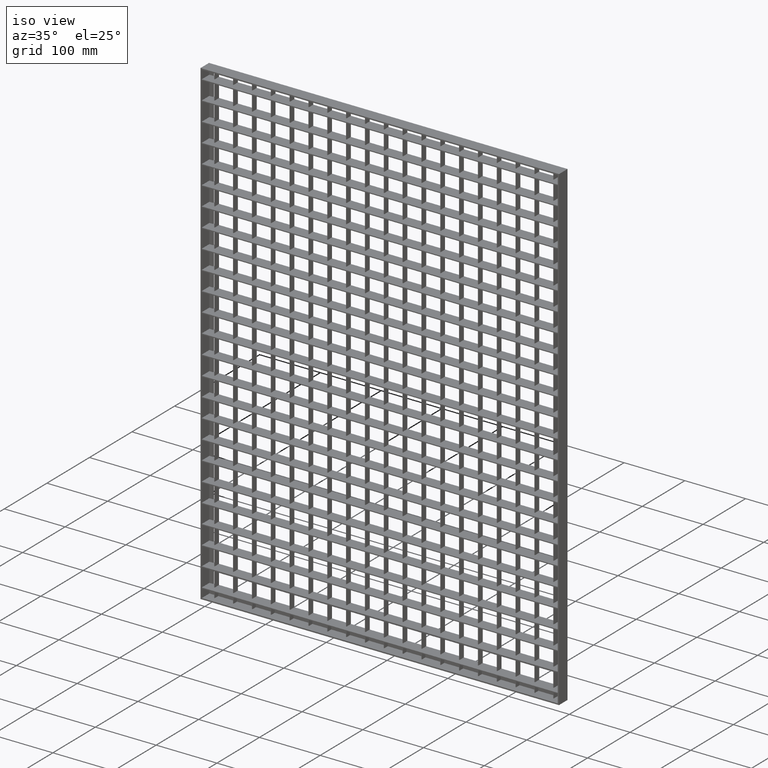
[diagram: clean part render]
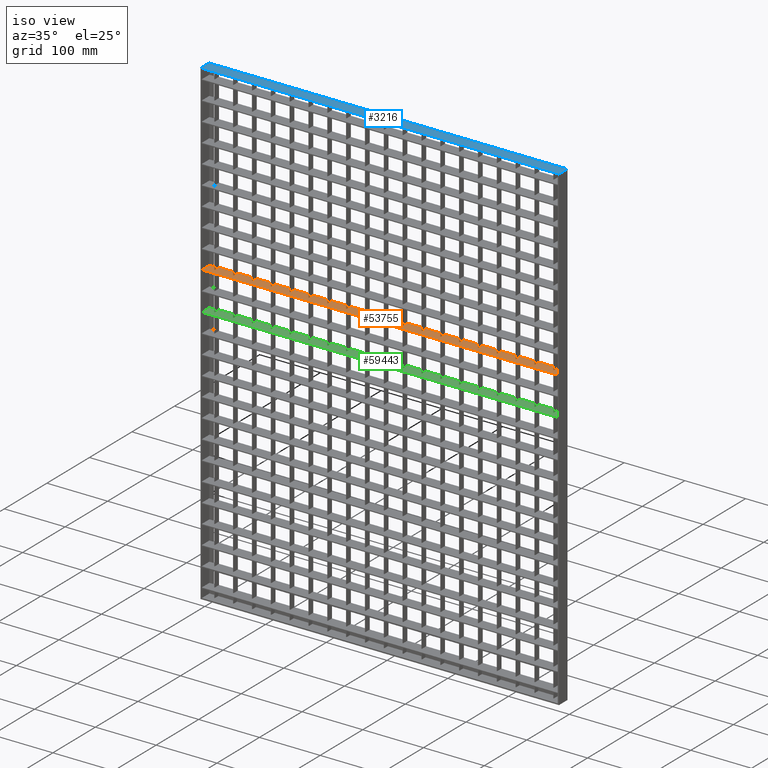
[diagram: same view with three faces highlighted in distinct colors, each labeled with its STEP entity id]
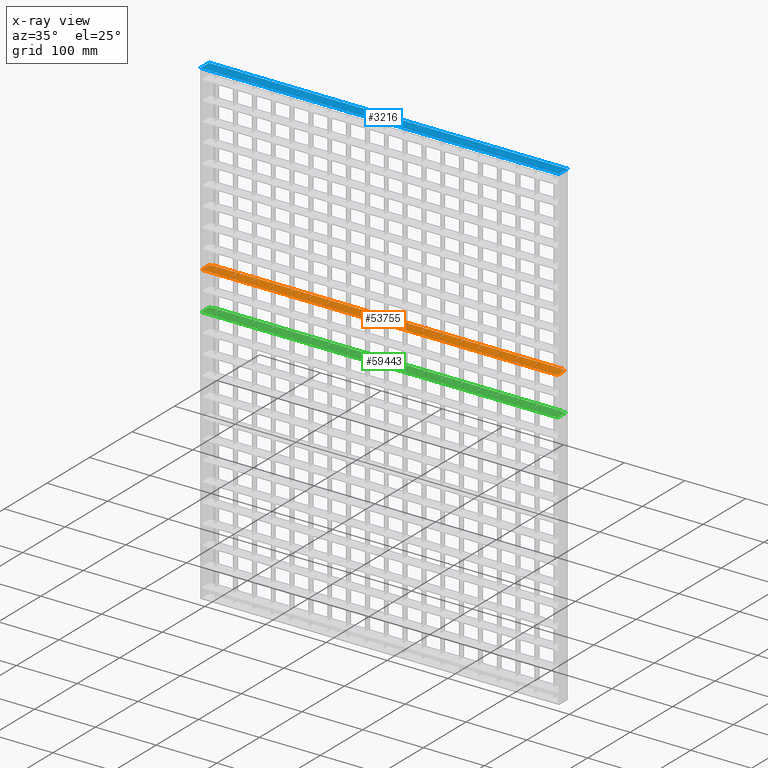
[diagram: x-ray of the same camera — body ghosted, the three highlighted faces saturated]
A machine part, iso view with three faces highlighted in distinct colors.
The next image is the same camera in x-ray (body ghosted, the three faces saturated) — at least one of them is partly hidden behind the body in this view.
Their STEP definitions:

[orange] entity #53755 — the highlighted planar face has unit normal (0, 0, 1).
#103 = VECTOR ( 'NONE', #52579, 1000.000000000000000 ) ;
#299 = CARTESIAN_POINT ( 'NONE',  ( 387.5000000000000600, -9.999999999999817000, -299.7500000000001700 ) ) ;
#305 = EDGE_CURVE ( 'NONE', #62354, #67977, #70948, .T. ) ;
#471 = ORIENTED_EDGE ( 'NONE', *, *, #52050, .T. ) ;
#518 = VECTOR ( 'NONE', #54779, 1000.000000000000000 ) ;
#816 = CARTESIAN_POINT ( 'NONE',  ( 608.0561711201315800, 1.734723475976807100E-013, -299.7500000000001700 ) ) ;
#890 = CARTESIAN_POINT ( 'NONE',  ( 263.5000000000000600, -9.999999999999817000, -299.7500000000001700 ) ) ;
#1301 = DIRECTION ( 'NONE',  ( -0.0000000000000000000, 1.000000000000000000, 0.0000000000000000000 ) ) ;
#1452 = CARTESIAN_POINT ( 'NONE',  ( 295.5000000000000600, 1.734723475976807100E-015, -299.7500000000001700 ) ) ;
#1481 = DIRECTION ( 'NONE',  ( -0.0000000000000000000, 1.000000000000000000, 0.0000000000000000000 ) ) ;
#1537 = CARTESIAN_POINT ( 'NONE',  ( 608.0561711201315800, -9.999999999999817000, -299.7500000000001700 ) ) ;
#1552 = LINE ( 'NONE', #20115, #22366 ) ;
#1782 = EDGE_CURVE ( 'NONE', #21503, #49545, #43067, .T. ) ;
#1871 = DIRECTION ( 'NONE',  ( 0.0000000000000000000, -1.000000000000000000, 0.0000000000000000000 ) ) ;
#2013 = LINE ( 'NONE', #52976, #44590 ) ;
#2276 = ORIENTED_EDGE ( 'NONE', *, *, #60250, .F. ) ;
#2294 = CARTESIAN_POINT ( 'NONE',  ( 608.0561711201315800, -8.673617379884035500E-015, -299.7500000000001700 ) ) ;
#2423 = CARTESIAN_POINT ( 'NONE',  ( 608.0561711201315800, 10.00000000000018500, -299.7500000000001700 ) ) ;
#2486 = CARTESIAN_POINT ( 'NONE',  ( 78.50000000000001400, 10.00000000000002300, -299.7500000000001700 ) ) ;
#2817 = EDGE_CURVE ( 'NONE', #5910, #11136, #13364, .T. ) ;
#2847 = VECTOR ( 'NONE', #58896, 1000.000000000000000 ) ;
#2982 = EDGE_CURVE ( 'NONE', #51438, #21503, #19391, .T. ) ;
#3153 = CARTESIAN_POINT ( 'NONE',  ( 294.5000000000000600, 1.145624325909299700E-015, -299.7500000000001700 ) ) ;
#3177 = CARTESIAN_POINT ( 'NONE',  ( 263.5000000000000600, 10.00000000000000200, -299.7500000000001700 ) ) ;
#3201 = CARTESIAN_POINT ( 'NONE',  ( 78.50000000000001400, 1.734723475976807100E-015, -299.7500000000001700 ) ) ;
#3277 = DIRECTION ( 'NONE',  ( 0.0000000000000000000, -1.000000000000000000, 0.0000000000000000000 ) ) ;
#3361 = EDGE_CURVE ( 'NONE', #62862, #19945, #7163, .T. ) ;
#3375 = LINE ( 'NONE', #36348, #5973 ) ;
#3585 = LINE ( 'NONE', #29230, #37407 ) ;
#3588 = VECTOR ( 'NONE', #60753, 1000.000000000000000 ) ;
#3892 = VERTEX_POINT ( 'NONE', #50657 ) ;
#3932 = CARTESIAN_POINT ( 'NONE',  ( 573.5000000000001100, -9.999999999999817000, -299.7500000000001700 ) ) ;
#4356 = ORIENTED_EDGE ( 'NONE', *, *, #62717, .T. ) ;
#4552 = CARTESIAN_POINT ( 'NONE',  ( 608.0561711201315800, 1.543903893619358300E-013, -299.7500000000001700 ) ) ;
#4583 = CARTESIAN_POINT ( 'NONE',  ( 2.000000000000003600, 8.000000000000001800, -299.7500000000001700 ) ) ;
#4621 = EDGE_CURVE ( 'NONE', #20366, #68840, #58970, .T. ) ;
#4643 = LINE ( 'NONE', #39978, #66218 ) ;
#4691 = CARTESIAN_POINT ( 'NONE',  ( 46.50000000000004300, 10.00000000000000200, -299.7500000000001700 ) ) ;
#4985 = DIRECTION ( 'NONE',  ( -0.0000000000000000000, 1.000000000000000000, 0.0000000000000000000 ) ) ;
#5030 = VECTOR ( 'NONE', #24741, 1000.000000000000000 ) ;
#5046 = VERTEX_POINT ( 'NONE', #18350 ) ;
#5103 = LINE ( 'NONE', #34422, #45083 ) ;
#5201 = LINE ( 'NONE', #66436, #44269 ) ;
#5588 = ORIENTED_EDGE ( 'NONE', *, *, #70339, .T. ) ;
#5800 = ORIENTED_EDGE ( 'NONE', *, *, #46658, .F. ) ;
#5872 = CARTESIAN_POINT ( 'NONE',  ( 608.0561711201315800, -2.775557561562891400E-014, -299.7500000000001700 ) ) ;
#5910 = VERTEX_POINT ( 'NONE', #56666 ) ;
#5915 = DIRECTION ( 'NONE',  ( -0.0000000000000000000, -1.000000000000000000, 0.0000000000000000000 ) ) ;
#5973 = VECTOR ( 'NONE', #25684, 1000.000000000000000 ) ;
#6086 = EDGE_CURVE ( 'NONE', #31523, #15103, #54346, .T. ) ;
#6276 = DIRECTION ( 'NONE',  ( -1.000000000000000000, 3.061616997868373300E-016, 0.0000000000000000000 ) ) ;
#6348 = DIRECTION ( 'NONE',  ( 1.000000000000000000, 3.061616997868373300E-016, -0.0000000000000000000 ) ) ;
#6373 = ORIENTED_EDGE ( 'NONE', *, *, #26470, .F. ) ;
#6460 = ORIENTED_EDGE ( 'NONE', *, *, #21492, .F. ) ;
#6513 = EDGE_CURVE ( 'NONE', #10357, #70704, #71631, .T. ) ;
#6633 = EDGE_CURVE ( 'NONE', #31538, #51925, #10904, .T. ) ;
#6666 = VECTOR ( 'NONE', #33614, 1000.000000000000000 ) ;
#6801 = CARTESIAN_POINT ( 'NONE',  ( 608.0561711201315800, 10.00000000000018500, -299.7500000000001700 ) ) ;
#7016 = EDGE_LOOP ( 'NONE', ( #471, #5588, #39032, #22708, #68021, #52952, #21136, #11941, #10580, #27653, #41601, #42055, #4356, #56093, #71930, #18095, #13382, #64642, #42006, #48386, #11554, #64992, #11164, #26551, #64673, #18045, #66451, #61398, #28428, #16221, #36736, #33596, #20145, #35625, #11772, #25930, #31682, #63331, #18334, #48012, #8236, #38557, #61094, #41270, #31212, #21967, #44042, #6373, #10134, #36703, #66450, #62343, #48924, #58794, #28863, #32359, #14643, #68027, #29237, #13254, #53742, #49126, #56691, #52001, #57052, #5800, #8831, #6460, #71373, #30404, #2276, #28787, #59107, #29246, #19203, #37848, #10648, #32182, #48666, #38089, #41016, #38651, #14442, #52595 ) ) ;
#7030 = LINE ( 'NONE', #14760, #30473 ) ;
#7065 = CARTESIAN_POINT ( 'NONE',  ( 326.5000000000000600, 1.412378878923498800E-015, -299.7500000000001700 ) ) ;
#7149 = CARTESIAN_POINT ( 'NONE',  ( 295.5000000000000600, 10.00000000000008900, -299.7500000000001700 ) ) ;
#7163 = LINE ( 'NONE', #45686, #64399 ) ;
#7266 = EDGE_CURVE ( 'NONE', #23363, #40333, #21130, .T. ) ;
#7398 = VECTOR ( 'NONE', #61892, 1000.000000000000000 ) ;
#7400 = CARTESIAN_POINT ( 'NONE',  ( 608.0561711201315800, 10.00000000000018500, -299.7500000000001700 ) ) ;
#7474 = EDGE_CURVE ( 'NONE', #10230, #55299, #26293, .T. ) ;
#7501 = LINE ( 'NONE', #21284, #63908 ) ;
#7559 = DIRECTION ( 'NONE',  ( 1.000000000000000000, 3.061616997868373300E-016, -0.0000000000000000000 ) ) ;
#7608 = EDGE_CURVE ( 'NONE', #71114, #24300, #64436, .T. ) ;
#7656 = VECTOR ( 'NONE', #49151, 1000.000000000000000 ) ;
#7707 = CARTESIAN_POINT ( 'NONE',  ( 356.5000000000001100, 1.718540578710336300E-015, -299.7500000000001700 ) ) ;
#8043 = VECTOR ( 'NONE', #34870, 1000.000000000000000 ) ;
#8105 = VERTEX_POINT ( 'NONE', #71063 ) ;
#8236 = ORIENTED_EDGE ( 'NONE', *, *, #29364, .T. ) ;
#8408 = VECTOR ( 'NONE', #38760, 1000.000000000000000 ) ;
#8712 = CARTESIAN_POINT ( 'NONE',  ( 582.0000000000001100, 8.000000000000001800, -299.7500000000002800 ) ) ;
#8831 = ORIENTED_EDGE ( 'NONE', *, *, #29555, .F. ) ;
#8894 = VECTOR ( 'NONE', #6276, 1000.000000000000000 ) ;
#8927 = DIRECTION ( 'NONE',  ( 0.0000000000000000000, -1.000000000000000000, 0.0000000000000000000 ) ) ;
#9007 = EDGE_CURVE ( 'NONE', #15103, #24207, #45277, .T. ) ;
#9149 = VERTEX_POINT ( 'NONE', #25583 ) ;
#9172 = LINE ( 'NONE', #27426, #62076 ) ;
#9582 = CARTESIAN_POINT ( 'NONE',  ( 171.5000000000000300, 1.734723475976807100E-015, -299.7500000000001700 ) ) ;
#9620 = DIRECTION ( 'NONE',  ( -1.000000000000000000, -3.061616997868382600E-016, 0.0000000000000000000 ) ) ;
#9893 = LINE ( 'NONE', #45319, #62814 ) ;
#10134 = ORIENTED_EDGE ( 'NONE', *, *, #56324, .T. ) ;
#10143 = EDGE_CURVE ( 'NONE', #14174, #58579, #5103, .T. ) ;
#10145 = CARTESIAN_POINT ( 'NONE',  ( 170.5000000000000300, 10.00000000000000200, -299.7500000000001700 ) ) ;
#10230 = VERTEX_POINT ( 'NONE', #40737 ) ;
#10357 = VERTEX_POINT ( 'NONE', #4691 ) ;
#10534 = VECTOR ( 'NONE', #7559, 1000.000000000000000 ) ;
#10580 = ORIENTED_EDGE ( 'NONE', *, *, #23595, .T. ) ;
#10648 = ORIENTED_EDGE ( 'NONE', *, *, #55039, .T. ) ;
#10705 = VECTOR ( 'NONE', #31189, 1000.000000000000000 ) ;
#10904 = LINE ( 'NONE', #23587, #7398 ) ;
#10950 = EDGE_CURVE ( 'NONE', #61931, #40245, #60278, .T. ) ;
#11118 = EDGE_CURVE ( 'NONE', #33775, #47158, #43826, .T. ) ;
#11136 = VERTEX_POINT ( 'NONE', #18250 ) ;
#11164 = ORIENTED_EDGE ( 'NONE', *, *, #15955, .T. ) ;
#11252 = CARTESIAN_POINT ( 'NONE',  ( 543.5000000000001100, 10.00000000000000200, -299.7500000000002800 ) ) ;
#11498 = LINE ( 'NONE', #57368, #27963 ) ;
#11506 = DIRECTION ( 'NONE',  ( 0.0000000000000000000, -1.000000000000000000, 0.0000000000000000000 ) ) ;
#11554 = ORIENTED_EDGE ( 'NONE', *, *, #50232, .T. ) ;
#11772 = ORIENTED_EDGE ( 'NONE', *, *, #34240, .T. ) ;
#11777 = VERTEX_POINT ( 'NONE', #67838 ) ;
#11941 = ORIENTED_EDGE ( 'NONE', *, *, #10143, .T. ) ;
#12056 = VERTEX_POINT ( 'NONE', #37038 ) ;
#12249 = VECTOR ( 'NONE', #36933, 1000.000000000000000 ) ;
#12344 = EDGE_CURVE ( 'NONE', #31818, #24442, #54848, .T. ) ;
#12485 = EDGE_CURVE ( 'NONE', #59702, #49545, #63470, .T. ) ;
#12754 = VECTOR ( 'NONE', #19466, 1000.000000000000000 ) ;
#12828 = EDGE_CURVE ( 'NONE', #56808, #20366, #24509, .T. ) ;
#12844 = DIRECTION ( 'NONE',  ( 0.0000000000000000000, -1.000000000000000000, 0.0000000000000000000 ) ) ;
#12962 = EDGE_CURVE ( 'NONE', #62852, #19958, #34884, .T. ) ;
#12964 = CARTESIAN_POINT ( 'NONE',  ( 139.5000000000000000, 2.262818186300109700E-015, -299.7500000000001700 ) ) ;
#13224 = VERTEX_POINT ( 'NONE', #59568 ) ;
#13254 = ORIENTED_EDGE ( 'NONE', *, *, #61792, .F. ) ;
#13364 = LINE ( 'NONE', #299, #15091 ) ;
#13382 = ORIENTED_EDGE ( 'NONE', *, *, #34230, .T. ) ;
#13470 = DIRECTION ( 'NONE',  ( 0.0000000000000000000, 0.0000000000000000000, 1.000000000000000000 ) ) ;
#13593 = DIRECTION ( 'NONE',  ( 0.0000000000000000000, -1.000000000000000000, 0.0000000000000000000 ) ) ;
#13602 = CARTESIAN_POINT ( 'NONE',  ( 481.5000000000000600, -9.999999999999817000, -299.7500000000001700 ) ) ;
#13720 = VECTOR ( 'NONE', #70889, 1000.000000000000000 ) ;
#13788 = EDGE_CURVE ( 'NONE', #5046, #26277, #56467, .T. ) ;
#13973 = CARTESIAN_POINT ( 'NONE',  ( 294.5000000000000600, -9.999999999999817000, -299.7500000000001700 ) ) ;
#14134 = CARTESIAN_POINT ( 'NONE',  ( 588.0000000000002300, 8.000000000000001800, -299.7500000000002800 ) ) ;
#14160 = CARTESIAN_POINT ( 'NONE',  ( 2.000000000000001800, -10.00000000000000200, -299.7500000000001700 ) ) ;
#14174 = VERTEX_POINT ( 'NONE', #67794 ) ;
#14373 = VERTEX_POINT ( 'NONE', #54449 ) ;
#14398 = EDGE_CURVE ( 'NONE', #66446, #23363, #24218, .T. ) ;
#14442 = ORIENTED_EDGE ( 'NONE', *, *, #61914, .T. ) ;
#14595 = DIRECTION ( 'NONE',  ( -0.0000000000000000000, 1.000000000000000000, 0.0000000000000000000 ) ) ;
#14643 = ORIENTED_EDGE ( 'NONE', *, *, #29670, .T. ) ;
#14760 = CARTESIAN_POINT ( 'NONE',  ( 608.0561711201315800, 10.00000000000018500, -299.7500000000001700 ) ) ;
#14863 = DIRECTION ( 'NONE',  ( 1.000000000000000000, 3.061616997868373300E-016, -0.0000000000000000000 ) ) ;
#14891 = LINE ( 'NONE', #40974, #103 ) ;
#14892 = LINE ( 'NONE', #816, #63438 ) ;
#14909 = LINE ( 'NONE', #55347, #51334 ) ;
#14982 = CARTESIAN_POINT ( 'NONE',  ( 608.0561711201315800, 10.00000000000018500, -299.7500000000001700 ) ) ;
#15091 = VECTOR ( 'NONE', #34257, 1000.000000000000000 ) ;
#15103 = VERTEX_POINT ( 'NONE', #44922 ) ;
#15446 = CARTESIAN_POINT ( 'NONE',  ( 108.5000000000000400, -9.999999999999817000, -299.7500000000001700 ) ) ;
#15727 = DIRECTION ( 'NONE',  ( 1.000000000000000000, 3.061616997868373300E-016, -0.0000000000000000000 ) ) ;
#15735 = EDGE_CURVE ( 'NONE', #48642, #3892, #23138, .T. ) ;
#15955 = EDGE_CURVE ( 'NONE', #51925, #31523, #17048, .T. ) ;
#16054 = VECTOR ( 'NONE', #6348, 1000.000000000000000 ) ;
#16218 = CARTESIAN_POINT ( 'NONE',  ( 47.49999999999998600, 10.00000000000001200, -299.7500000000001700 ) ) ;
#16221 = ORIENTED_EDGE ( 'NONE', *, *, #16602, .T. ) ;
#16311 = EDGE_CURVE ( 'NONE', #28929, #39876, #9172, .T. ) ;
#16413 = LINE ( 'NONE', #7400, #18164 ) ;
#16602 = EDGE_CURVE ( 'NONE', #38274, #56808, #49251, .T. ) ;
#16950 = CARTESIAN_POINT ( 'NONE',  ( 512.5000000000000000, 1.412378878923498800E-015, -299.7500000000001700 ) ) ;
#17048 = LINE ( 'NONE', #52175, #12754 ) ;
#17565 = VECTOR ( 'NONE', #29051, 1000.000000000000000 ) ;
#17580 = CARTESIAN_POINT ( 'NONE',  ( 608.0561711201315800, 10.00000000000018500, -299.7500000000001700 ) ) ;
#17599 = DIRECTION ( 'NONE',  ( 1.000000000000000000, 3.061616997868373300E-016, -0.0000000000000000000 ) ) ;
#17669 = LINE ( 'NONE', #53570, #2847 ) ;
#17678 = EDGE_CURVE ( 'NONE', #40336, #39040, #61215, .T. ) ;
#17831 = CARTESIAN_POINT ( 'NONE',  ( 7.999999999999996400, 8.000000000000001800, -299.7500000000001700 ) ) ;
#17838 = PLANE ( 'NONE',  #40214 ) ;
#17858 = DIRECTION ( 'NONE',  ( -1.000000000000000000, 3.061616997868373300E-016, 0.0000000000000000000 ) ) ;
#18030 = VERTEX_POINT ( 'NONE', #14134 ) ;
#18036 = CARTESIAN_POINT ( 'NONE',  ( 480.5000000000000600, -9.999999999999817000, -299.7500000000001700 ) ) ;
#18045 = ORIENTED_EDGE ( 'NONE', *, *, #46140, .T. ) ;
#18095 = ORIENTED_EDGE ( 'NONE', *, *, #305, .T. ) ;
#18142 = CARTESIAN_POINT ( 'NONE',  ( 608.0561711201315800, -4.683753385137379200E-014, -299.7500000000001700 ) ) ;
#18164 = VECTOR ( 'NONE', #40160, 1000.000000000000000 ) ;
#18250 = CARTESIAN_POINT ( 'NONE',  ( 387.5000000000000000, 10.00000000000011700, -299.7500000000001700 ) ) ;
#18334 = ORIENTED_EDGE ( 'NONE', *, *, #2982, .F. ) ;
#18346 = VECTOR ( 'NONE', #4985, 1000.000000000000000 ) ;
#18350 = CARTESIAN_POINT ( 'NONE',  ( 481.5000000000000000, 10.00000000000000200, -299.7500000000002800 ) ) ;
#18371 = CARTESIAN_POINT ( 'NONE',  ( 170.5000000000000300, -9.999999999999817000, -299.7500000000001700 ) ) ;
#18468 = CARTESIAN_POINT ( 'NONE',  ( 77.50000000000001400, -9.999999999999817000, -299.7500000000001700 ) ) ;
#18649 = LINE ( 'NONE', #51699, #31631 ) ;
#18684 = CARTESIAN_POINT ( 'NONE',  ( 543.5000000000001100, -9.999999999999817000, -299.7500000000001700 ) ) ;
#19038 = LINE ( 'NONE', #39613, #33754 ) ;
#19203 = ORIENTED_EDGE ( 'NONE', *, *, #19982, .F. ) ;
#19217 = VECTOR ( 'NONE', #19539, 1000.000000000000000 ) ;
#19391 = LINE ( 'NONE', #23824, #21092 ) ;
#19466 = DIRECTION ( 'NONE',  ( -1.000000000000000000, 3.061616997868373300E-016, 0.0000000000000000000 ) ) ;
#19539 = DIRECTION ( 'NONE',  ( -1.000000000000000000, -3.061616997868382600E-016, 0.0000000000000000000 ) ) ;
#19605 = LINE ( 'NONE', #1537, #69064 ) ;
#19650 = CARTESIAN_POINT ( 'NONE',  ( 294.5000000000000600, 10.00000000000000200, -299.7500000000001700 ) ) ;
#19740 = VERTEX_POINT ( 'NONE', #67296 ) ;
#19788 = LINE ( 'NONE', #24252, #5030 ) ;
#19945 = VERTEX_POINT ( 'NONE', #32477 ) ;
#19958 = VERTEX_POINT ( 'NONE', #26406 ) ;
#19969 = EDGE_CURVE ( 'NONE', #19958, #65598, #60828, .T. ) ;
#19982 = EDGE_CURVE ( 'NONE', #55299, #14373, #28714, .T. ) ;
#20115 = CARTESIAN_POINT ( 'NONE',  ( 608.0561711201315800, 10.00000000000018500, -299.7500000000001700 ) ) ;
#20145 = ORIENTED_EDGE ( 'NONE', *, *, #23084, .T. ) ;
#20366 = VERTEX_POINT ( 'NONE', #7707 ) ;
#20434 = CARTESIAN_POINT ( 'NONE',  ( 608.0561711201315800, 10.00000000000018500, -299.7500000000001700 ) ) ;
#20871 = CARTESIAN_POINT ( 'NONE',  ( 608.0561711201315800, 1.266348137463069200E-013, -299.7500000000001700 ) ) ;
#20935 = VECTOR ( 'NONE', #47309, 1000.000000000000000 ) ;
#21057 = VERTEX_POINT ( 'NONE', #58974 ) ;
#21079 = EDGE_CURVE ( 'NONE', #23413, #11777, #45978, .T. ) ;
#21092 = VECTOR ( 'NONE', #25989, 1000.000000000000000 ) ;
#21126 = CARTESIAN_POINT ( 'NONE',  ( 543.5000000000001100, 1.412378878923498800E-015, -299.7500000000001700 ) ) ;
#21130 = LINE ( 'NONE', #18684, #57610 ) ;
#21136 = ORIENTED_EDGE ( 'NONE', *, *, #60222, .T. ) ;
#21200 = CARTESIAN_POINT ( 'NONE',  ( 15.50000000000006900, 7.279604082452426400E-016, -299.7500000000001700 ) ) ;
#21284 = CARTESIAN_POINT ( 'NONE',  ( 139.5000000000000600, -9.999999999999817000, -299.7500000000001700 ) ) ;
#21465 = CARTESIAN_POINT ( 'NONE',  ( 608.0561711201315800, 10.00000000000018500, -299.7500000000001700 ) ) ;
#21468 = CARTESIAN_POINT ( 'NONE',  ( 449.5000000000001100, -9.999999999999817000, -299.7500000000001700 ) ) ;
#21492 = EDGE_CURVE ( 'NONE', #8105, #58464, #68448, .T. ) ;
#21503 = VERTEX_POINT ( 'NONE', #1452 ) ;
#21630 = EDGE_CURVE ( 'NONE', #40245, #13224, #3375, .T. ) ;
#21967 = ORIENTED_EDGE ( 'NONE', *, *, #19969, .F. ) ;
#22272 = DIRECTION ( 'NONE',  ( 1.000000000000000000, 3.061616997868373300E-016, -0.0000000000000000000 ) ) ;
#22366 = VECTOR ( 'NONE', #52369, 1000.000000000000000 ) ;
#22627 = CARTESIAN_POINT ( 'NONE',  ( 325.5000000000000600, 1.718540578710336300E-015, -299.7500000000001700 ) ) ;
#22708 = ORIENTED_EDGE ( 'NONE', *, *, #52893, .T. ) ;
#22730 = DIRECTION ( 'NONE',  ( -0.0000000000000000000, -1.000000000000000000, 0.0000000000000000000 ) ) ;
#22885 = EDGE_CURVE ( 'NONE', #11136, #38274, #16413, .T. ) ;
#23084 = EDGE_CURVE ( 'NONE', #68840, #31818, #47628, .T. ) ;
#23138 = LINE ( 'NONE', #4552, #65642 ) ;
#23140 = DIRECTION ( 'NONE',  ( -1.000000000000000000, -3.061616997868382600E-016, 0.0000000000000000000 ) ) ;
#23146 = LINE ( 'NONE', #18142, #25708 ) ;
#23147 = CARTESIAN_POINT ( 'NONE',  ( 542.5000000000000000, 10.00000000000016300, -299.7500000000001700 ) ) ;
#23363 = VERTEX_POINT ( 'NONE', #11252 ) ;
#23413 = VERTEX_POINT ( 'NONE', #50227 ) ;
#23587 = CARTESIAN_POINT ( 'NONE',  ( 419.5000000000001100, -9.999999999999817000, -299.7500000000001700 ) ) ;
#23595 = EDGE_CURVE ( 'NONE', #58579, #55374, #1552, .T. ) ;
#23824 = CARTESIAN_POINT ( 'NONE',  ( 608.0561711201315800, 9.714451465470119700E-014, -299.7500000000001700 ) ) ;
#24207 = VERTEX_POINT ( 'NONE', #51808 ) ;
#24218 = LINE ( 'NONE', #21465, #25065 ) ;
#24248 = LINE ( 'NONE', #60690, #62871 ) ;
#24252 = CARTESIAN_POINT ( 'NONE',  ( 608.0561711201315800, 10.00000000000018500, -299.7500000000001700 ) ) ;
#24300 = VERTEX_POINT ( 'NONE', #30986 ) ;
#24370 = CARTESIAN_POINT ( 'NONE',  ( 608.0561711201315800, 10.00000000000018500, -299.7500000000001700 ) ) ;
#24401 = DIRECTION ( 'NONE',  ( -1.000000000000000000, -3.061616997868382600E-016, 0.0000000000000000000 ) ) ;
#24442 = VERTEX_POINT ( 'NONE', #7065 ) ;
#24469 = DIRECTION ( 'NONE',  ( 0.0000000000000000000, -1.000000000000000000, 0.0000000000000000000 ) ) ;
#24487 = VECTOR ( 'NONE', #52815, 1000.000000000000000 ) ;
#24493 = CARTESIAN_POINT ( 'NONE',  ( 608.0561711201315800, 1.075528555105620400E-013, -299.7500000000001700 ) ) ;
#24509 = LINE ( 'NONE', #66660, #8894 ) ;
#24719 = VERTEX_POINT ( 'NONE', #19650 ) ;
#24722 = VECTOR ( 'NONE', #49764, 1000.000000000000000 ) ;
#24741 = DIRECTION ( 'NONE',  ( -1.000000000000000000, -3.061616997868382600E-016, 0.0000000000000000000 ) ) ;
#25065 = VECTOR ( 'NONE', #58556, 1000.000000000000000 ) ;
#25109 = DIRECTION ( 'NONE',  ( 0.0000000000000000000, -1.000000000000000000, 0.0000000000000000000 ) ) ;
#25119 = CARTESIAN_POINT ( 'NONE',  ( 480.5000000000000000, 1.718540578710336300E-015, -299.7500000000001700 ) ) ;
#25213 = CARTESIAN_POINT ( 'NONE',  ( 480.5000000000000000, 10.00000000000014400, -299.7500000000001700 ) ) ;
#25271 = CARTESIAN_POINT ( 'NONE',  ( 170.5000000000000300, 1.345490023831227300E-015, -299.7500000000001700 ) ) ;
#25583 = CARTESIAN_POINT ( 'NONE',  ( 47.50000000000009900, 1.734723475976807100E-015, -299.7500000000001700 ) ) ;
#25684 = DIRECTION ( 'NONE',  ( -0.0000000000000000000, 1.000000000000000000, 0.0000000000000000000 ) ) ;
#25708 = VECTOR ( 'NONE', #67578, 1000.000000000000000 ) ;
#25930 = ORIENTED_EDGE ( 'NONE', *, *, #61930, .T. ) ;
#25953 = LINE ( 'NONE', #890, #26776 ) ;
#25963 = VERTEX_POINT ( 'NONE', #62661 ) ;
#25989 = DIRECTION ( 'NONE',  ( 1.000000000000000000, 3.061616997868373300E-016, -0.0000000000000000000 ) ) ;
#26159 = CARTESIAN_POINT ( 'NONE',  ( 450.5000000000001100, -9.999999999999817000, -299.7500000000001700 ) ) ;
#26208 = DIRECTION ( 'NONE',  ( -0.0000000000000000000, 1.000000000000000000, 0.0000000000000000000 ) ) ;
#26277 = VERTEX_POINT ( 'NONE', #27471 ) ;
#26293 = LINE ( 'NONE', #35586, #62746 ) ;
#26406 = CARTESIAN_POINT ( 'NONE',  ( 233.5000000000000300, 1.734723475976807100E-015, -299.7500000000001700 ) ) ;
#26470 = EDGE_CURVE ( 'NONE', #29334, #62852, #54916, .T. ) ;
#26551 = ORIENTED_EDGE ( 'NONE', *, *, #6086, .T. ) ;
#26759 = VERTEX_POINT ( 'NONE', #27551 ) ;
#26776 = VECTOR ( 'NONE', #12844, 1000.000000000000000 ) ;
#26855 = DIRECTION ( 'NONE',  ( 0.0000000000000000000, -1.000000000000000000, 0.0000000000000000000 ) ) ;
#26955 = VECTOR ( 'NONE', #31261, 1000.000000000000000 ) ;
#26986 = LINE ( 'NONE', #24493, #10534 ) ;
#27029 = CARTESIAN_POINT ( 'NONE',  ( 46.50000000000009900, 1.545355721753167300E-015, -299.7500000000001700 ) ) ;
#27067 = VECTOR ( 'NONE', #61796, 1000.000000000000000 ) ;
#27114 = LINE ( 'NONE', #38204, #54035 ) ;
#27129 = CARTESIAN_POINT ( 'NONE',  ( 449.5000000000000600, 1.718540578710336300E-015, -299.7500000000001700 ) ) ;
#27271 = EDGE_CURVE ( 'NONE', #47158, #45429, #61651, .T. ) ;
#27381 = CARTESIAN_POINT ( 'NONE',  ( 608.0561711201315800, 1.821459649775647400E-013, -299.7500000000001700 ) ) ;
#27426 = CARTESIAN_POINT ( 'NONE',  ( 608.0561711201315800, 1.457167719820518000E-013, -299.7500000000001700 ) ) ;
#27471 = CARTESIAN_POINT ( 'NONE',  ( 481.5000000000000000, 1.412378878923498800E-015, -299.7500000000001700 ) ) ;
#27551 = CARTESIAN_POINT ( 'NONE',  ( 202.5000000000000600, 10.00000000000005900, -299.7500000000001700 ) ) ;
#27625 = VECTOR ( 'NONE', #46728, 1000.000000000000000 ) ;
#27653 = ORIENTED_EDGE ( 'NONE', *, *, #33034, .T. ) ;
#27688 = DIRECTION ( 'NONE',  ( -0.0000000000000000000, 1.000000000000000000, 0.0000000000000000000 ) ) ;
#27749 = VECTOR ( 'NONE', #57725, 1000.000000000000000 ) ;
#27763 = LINE ( 'NONE', #13973, #40805 ) ;
#27963 = VECTOR ( 'NONE', #35756, 1000.000000000000000 ) ;
#28200 = VERTEX_POINT ( 'NONE', #27129 ) ;
#28428 = ORIENTED_EDGE ( 'NONE', *, *, #22885, .T. ) ;
#28714 = LINE ( 'NONE', #27381, #62559 ) ;
#28787 = ORIENTED_EDGE ( 'NONE', *, *, #6513, .F. ) ;
#28863 = ORIENTED_EDGE ( 'NONE', *, *, #11118, .F. ) ;
#28929 = VERTEX_POINT ( 'NONE', #12964 ) ;
#29051 = DIRECTION ( 'NONE',  ( 0.0000000000000000000, -1.000000000000000000, 0.0000000000000000000 ) ) ;
#29230 = CARTESIAN_POINT ( 'NONE',  ( 201.5000000000000000, -9.999999999999817000, -299.7500000000001700 ) ) ;
#29237 = ORIENTED_EDGE ( 'NONE', *, *, #16311, .F. ) ;
#29241 = CARTESIAN_POINT ( 'NONE',  ( 356.5000000000001100, 10.00000000000010800, -299.7500000000001700 ) ) ;
#29246 = ORIENTED_EDGE ( 'NONE', *, *, #60147, .F. ) ;
#29334 = VERTEX_POINT ( 'NONE', #60636 ) ;
#29364 = EDGE_CURVE ( 'NONE', #24719, #52091, #67854, .T. ) ;
#29540 = CARTESIAN_POINT ( 'NONE',  ( 450.5000000000000600, 10.00000000000000200, -299.7500000000002800 ) ) ;
#29555 = EDGE_CURVE ( 'NONE', #58464, #52885, #14891, .T. ) ;
#29670 = EDGE_CURVE ( 'NONE', #56332, #12056, #7030, .T. ) ;
#29775 = CARTESIAN_POINT ( 'NONE',  ( 419.5000000000000600, 1.412378878923498800E-015, -299.7500000000001700 ) ) ;
#30262 = CARTESIAN_POINT ( 'NONE',  ( 325.5000000000000600, 10.00000000000009800, -299.7500000000001700 ) ) ;
#30400 = VECTOR ( 'NONE', #31639, 1000.000000000000000 ) ;
#30404 = ORIENTED_EDGE ( 'NONE', *, *, #41604, .F. ) ;
#30429 = EDGE_CURVE ( 'NONE', #3892, #40480, #5201, .T. ) ;
#30473 = VECTOR ( 'NONE', #31728, 1000.000000000000000 ) ;
#30723 = VERTEX_POINT ( 'NONE', #59604 ) ;
#30986 = CARTESIAN_POINT ( 'NONE',  ( 573.5000000000001100, 1.718540578710336300E-015, -299.7500000000001700 ) ) ;
#31037 = LINE ( 'NONE', #43011, #13720 ) ;
#31189 = DIRECTION ( 'NONE',  ( -1.000000000000000000, 3.061616997868373300E-016, 0.0000000000000000000 ) ) ;
#31212 = ORIENTED_EDGE ( 'NONE', *, *, #37562, .T. ) ;
#31261 = DIRECTION ( 'NONE',  ( 0.0000000000000000000, -1.000000000000000000, 0.0000000000000000000 ) ) ;
#31450 = VECTOR ( 'NONE', #37314, 1000.000000000000000 ) ;
#31453 = CARTESIAN_POINT ( 'NONE',  ( 232.5000000000000300, -9.999999999999817000, -299.7500000000001700 ) ) ;
#31523 = VERTEX_POINT ( 'NONE', #44491 ) ;
#31538 = VERTEX_POINT ( 'NONE', #55617 ) ;
#31579 = VERTEX_POINT ( 'NONE', #39384 ) ;
#31631 = VECTOR ( 'NONE', #67725, 1000.000000000000000 ) ;
#31639 = DIRECTION ( 'NONE',  ( -0.0000000000000000000, 1.000000000000000000, 0.0000000000000000000 ) ) ;
#31682 = ORIENTED_EDGE ( 'NONE', *, *, #12485, .T. ) ;
#31728 = DIRECTION ( 'NONE',  ( -1.000000000000000000, -3.061616997868382600E-016, 0.0000000000000000000 ) ) ;
#31818 = VERTEX_POINT ( 'NONE', #35215 ) ;
#32182 = ORIENTED_EDGE ( 'NONE', *, *, #17678, .T. ) ;
#32359 = ORIENTED_EDGE ( 'NONE', *, *, #34791, .F. ) ;
#32477 = CARTESIAN_POINT ( 'NONE',  ( 582.0000000000002300, 10.00000000000000200, -299.7500000000002800 ) ) ;
#32699 = CARTESIAN_POINT ( 'NONE',  ( 325.5000000000000600, -9.999999999999817000, -299.7500000000001700 ) ) ;
#32892 = VECTOR ( 'NONE', #24469, 1000.000000000000000 ) ;
#32923 = CARTESIAN_POINT ( 'NONE',  ( 573.5000000000001100, 10.00000000000017400, -299.7500000000001700 ) ) ;
#33016 = CARTESIAN_POINT ( 'NONE',  ( 140.5000000000000600, -9.999999999999817000, -299.7500000000001700 ) ) ;
#33034 = EDGE_CURVE ( 'NONE', #55374, #61931, #59495, .T. ) ;
#33062 = VECTOR ( 'NONE', #65352, 1000.000000000000000 ) ;
#33273 = DIRECTION ( 'NONE',  ( -1.000000000000000000, -3.061616997868382600E-016, 0.0000000000000000000 ) ) ;
#33596 = ORIENTED_EDGE ( 'NONE', *, *, #4621, .T. ) ;
#33602 = DIRECTION ( 'NONE',  ( 0.0000000000000000000, -1.000000000000000000, 0.0000000000000000000 ) ) ;
#33614 = DIRECTION ( 'NONE',  ( -1.000000000000000000, 0.0000000000000000000, 0.0000000000000000000 ) ) ;
#33754 = VECTOR ( 'NONE', #56309, 1000.000000000000000 ) ;
#33775 = VERTEX_POINT ( 'NONE', #25271 ) ;
#33895 = DIRECTION ( 'NONE',  ( -0.0000000000000000000, 1.000000000000000000, 0.0000000000000000000 ) ) ;
#34230 = EDGE_CURVE ( 'NONE', #67977, #69563, #2013, .T. ) ;
#34240 = EDGE_CURVE ( 'NONE', #24442, #49068, #60122, .T. ) ;
#34241 = CARTESIAN_POINT ( 'NONE',  ( 326.5000000000000600, -9.999999999999817000, -299.7500000000001700 ) ) ;
#34257 = DIRECTION ( 'NONE',  ( -0.0000000000000000000, 1.000000000000000000, 0.0000000000000000000 ) ) ;
#34326 = VECTOR ( 'NONE', #33602, 1000.000000000000000 ) ;
#34415 = LINE ( 'NONE', #61505, #6666 ) ;
#34422 = CARTESIAN_POINT ( 'NONE',  ( 542.5000000000000000, -9.999999999999817000, -299.7500000000001700 ) ) ;
#34445 = EDGE_CURVE ( 'NONE', #31579, #69008, #17669, .T. ) ;
#34691 = VECTOR ( 'NONE', #14863, 1000.000000000000000 ) ;
#34791 = EDGE_CURVE ( 'NONE', #56332, #33775, #61772, .T. ) ;
#34870 = DIRECTION ( 'NONE',  ( 1.000000000000000000, 3.061616997868373300E-016, -0.0000000000000000000 ) ) ;
#34884 = LINE ( 'NONE', #68101, #8043 ) ;
#34925 = LINE ( 'NONE', #58702, #38418 ) ;
#34945 = EDGE_CURVE ( 'NONE', #30723, #40480, #11498, .T. ) ;
#34964 = DIRECTION ( 'NONE',  ( 0.0000000000000000000, 1.000000000000000000, -0.0000000000000000000 ) ) ;
#35002 = CARTESIAN_POINT ( 'NONE',  ( 388.5000000000000000, 1.412378878923498800E-015, -299.7500000000001700 ) ) ;
#35215 = CARTESIAN_POINT ( 'NONE',  ( 326.5000000000000600, 10.00000000000000200, -299.7500000000001700 ) ) ;
#35523 = DIRECTION ( 'NONE',  ( -0.0000000000000000000, 1.000000000000000000, 0.0000000000000000000 ) ) ;
#35586 = CARTESIAN_POINT ( 'NONE',  ( 15.50000000000006900, -9.999999999999817000, -299.7500000000001700 ) ) ;
#35625 = ORIENTED_EDGE ( 'NONE', *, *, #12344, .T. ) ;
#35756 = DIRECTION ( 'NONE',  ( -1.000000000000000000, -3.061616997868382600E-016, 0.0000000000000000000 ) ) ;
#35802 = VECTOR ( 'NONE', #52135, 1000.000000000000000 ) ;
#35902 = CARTESIAN_POINT ( 'NONE',  ( 608.0561711201315800, 10.00000000000018500, -299.7500000000001700 ) ) ;
#36128 = EDGE_CURVE ( 'NONE', #24719, #51438, #27763, .T. ) ;
#36139 = CARTESIAN_POINT ( 'NONE',  ( 388.5000000000000600, -9.999999999999817000, -299.7500000000001700 ) ) ;
#36348 = CARTESIAN_POINT ( 'NONE',  ( 511.5000000000000600, -9.999999999999817000, -299.7500000000001700 ) ) ;
#36480 = DIRECTION ( 'NONE',  ( -1.000000000000000000, -3.061616997868382600E-016, 0.0000000000000000000 ) ) ;
#36612 = VERTEX_POINT ( 'NONE', #14160 ) ;
#36703 = ORIENTED_EDGE ( 'NONE', *, *, #44131, .F. ) ;
#36736 = ORIENTED_EDGE ( 'NONE', *, *, #12828, .T. ) ;
#36764 = CARTESIAN_POINT ( 'NONE',  ( 264.5000000000000600, 10.00000000000007800, -299.7500000000001700 ) ) ;
#36915 = CARTESIAN_POINT ( 'NONE',  ( 233.5000000000000900, 10.00000000000006900, -299.7500000000001700 ) ) ;
#36929 = VECTOR ( 'NONE', #5915, 1000.000000000000000 ) ;
#36933 = DIRECTION ( 'NONE',  ( -0.0000000000000000000, 1.000000000000000000, 0.0000000000000000000 ) ) ;
#37038 = CARTESIAN_POINT ( 'NONE',  ( 140.5000000000000600, 10.00000000000004100, -299.7500000000001700 ) ) ;
#37314 = DIRECTION ( 'NONE',  ( 0.0000000000000000000, -1.000000000000000000, 0.0000000000000000000 ) ) ;
#37321 = DIRECTION ( 'NONE',  ( -0.0000000000000000000, 1.000000000000000000, 0.0000000000000000000 ) ) ;
#37371 = DIRECTION ( 'NONE',  ( -0.0000000000000000000, 1.000000000000000000, 0.0000000000000000000 ) ) ;
#37407 = VECTOR ( 'NONE', #67284, 1000.000000000000000 ) ;
#37478 = LINE ( 'NONE', #66563, #65232 ) ;
#37562 = EDGE_CURVE ( 'NONE', #47642, #65598, #19788, .T. ) ;
#37737 = LINE ( 'NONE', #17580, #57683 ) ;
#37848 = ORIENTED_EDGE ( 'NONE', *, *, #7474, .F. ) ;
#37933 = CARTESIAN_POINT ( 'NONE',  ( 356.5000000000001100, -9.999999999999817000, -299.7500000000001700 ) ) ;
#38089 = ORIENTED_EDGE ( 'NONE', *, *, #54820, .T. ) ;
#38204 = CARTESIAN_POINT ( 'NONE',  ( 202.5000000000000000, -9.999999999999817000, -299.7500000000001700 ) ) ;
#38274 = VERTEX_POINT ( 'NONE', #47443 ) ;
#38418 = VECTOR ( 'NONE', #14595, 1000.000000000000000 ) ;
#38557 = ORIENTED_EDGE ( 'NONE', *, *, #50319, .F. ) ;
#38651 = ORIENTED_EDGE ( 'NONE', *, *, #51097, .F. ) ;
#38760 = DIRECTION ( 'NONE',  ( -0.0000000000000000000, 1.000000000000000000, 0.0000000000000000000 ) ) ;
#39032 = ORIENTED_EDGE ( 'NONE', *, *, #7608, .T. ) ;
#39040 = VERTEX_POINT ( 'NONE', #51950 ) ;
#39047 = LINE ( 'NONE', #36139, #27749 ) ;
#39384 = CARTESIAN_POINT ( 'NONE',  ( 108.5000000000000400, 10.00000000000000200, -299.7500000000001700 ) ) ;
#39435 = CARTESIAN_POINT ( 'NONE',  ( 171.5000000000000300, 10.00000000000005000, -299.7500000000001700 ) ) ;
#39601 = CARTESIAN_POINT ( 'NONE',  ( 264.5000000000000600, 1.734723475976807100E-015, -299.7500000000001700 ) ) ;
#39613 = CARTESIAN_POINT ( 'NONE',  ( 608.0561711201315800, -6.591949208711867000E-014, -299.7500000000001700 ) ) ;
#39638 = VECTOR ( 'NONE', #35523, 1000.000000000000000 ) ;
#39876 = VERTEX_POINT ( 'NONE', #69560 ) ;
#39978 = CARTESIAN_POINT ( 'NONE',  ( 608.0561711201315800, 10.00000000000018500, -299.7500000000001700 ) ) ;
#40054 = LINE ( 'NONE', #21468, #18346 ) ;
#40083 = CARTESIAN_POINT ( 'NONE',  ( 449.5000000000000600, 10.00000000000013500, -299.7500000000001700 ) ) ;
#40122 = DIRECTION ( 'NONE',  ( 1.000000000000000000, 0.0000000000000000000, -0.0000000000000000000 ) ) ;
#40127 = CARTESIAN_POINT ( 'NONE',  ( 77.50000000000001400, 6.280275592842603000E-016, -299.7500000000001700 ) ) ;
#40160 = DIRECTION ( 'NONE',  ( -1.000000000000000000, -3.061616997868382600E-016, 0.0000000000000000000 ) ) ;
#40214 = AXIS2_PLACEMENT_3D ( 'NONE', #56582, #13470, #40122 ) ;
#40245 = VERTEX_POINT ( 'NONE', #57074 ) ;
#40322 = CARTESIAN_POINT ( 'NONE',  ( 608.0561711201315800, 1.353084311261909500E-013, -299.7500000000001700 ) ) ;
#40333 = VERTEX_POINT ( 'NONE', #21126 ) ;
#40336 = VERTEX_POINT ( 'NONE', #48553 ) ;
#40480 = VERTEX_POINT ( 'NONE', #63587 ) ;
#40737 = CARTESIAN_POINT ( 'NONE',  ( 15.50000000000001400, 10.00000000000000200, -299.7500000000001700 ) ) ;
#40775 = EDGE_CURVE ( 'NONE', #65355, #5910, #19038, .T. ) ;
#40805 = VECTOR ( 'NONE', #25109, 1000.000000000000000 ) ;
#40974 = CARTESIAN_POINT ( 'NONE',  ( 608.0561711201315800, 1.630640067418198700E-013, -299.7500000000001700 ) ) ;
#41016 = ORIENTED_EDGE ( 'NONE', *, *, #70998, .F. ) ;
#41160 = DIRECTION ( 'NONE',  ( -1.000000000000000000, 0.0000000000000000000, 0.0000000000000000000 ) ) ;
#41270 = ORIENTED_EDGE ( 'NONE', *, *, #56127, .F. ) ;
#41601 = ORIENTED_EDGE ( 'NONE', *, *, #10950, .T. ) ;
#41604 = EDGE_CURVE ( 'NONE', #9149, #64614, #31037, .T. ) ;
#41635 = CARTESIAN_POINT ( 'NONE',  ( 512.5000000000000000, -9.999999999999817000, -299.7500000000001700 ) ) ;
#41837 = VERTEX_POINT ( 'NONE', #39601 ) ;
#42006 = ORIENTED_EDGE ( 'NONE', *, *, #62045, .T. ) ;
#42055 = ORIENTED_EDGE ( 'NONE', *, *, #21630, .T. ) ;
#43011 = CARTESIAN_POINT ( 'NONE',  ( 47.50000000000009900, -9.999999999999817000, -299.7500000000001700 ) ) ;
#43067 = LINE ( 'NONE', #48979, #518 ) ;
#43826 = LINE ( 'NONE', #40322, #16054 ) ;
#44042 = ORIENTED_EDGE ( 'NONE', *, *, #12962, .F. ) ;
#44131 = EDGE_CURVE ( 'NONE', #11777, #26759, #27114, .T. ) ;
#44269 = VECTOR ( 'NONE', #33895, 1000.000000000000000 ) ;
#44491 = CARTESIAN_POINT ( 'NONE',  ( 418.5000000000000600, 1.718540578710336300E-015, -299.7500000000001700 ) ) ;
#44590 = VECTOR ( 'NONE', #36480, 1000.000000000000000 ) ;
#44653 = EDGE_CURVE ( 'NONE', #70405, #45429, #24248, .T. ) ;
#44731 = CARTESIAN_POINT ( 'NONE',  ( 46.49999999999998600, -9.999999999999817000, -299.7500000000001700 ) ) ;
#44922 = CARTESIAN_POINT ( 'NONE',  ( 418.5000000000000600, 10.00000000000012600, -299.7500000000001700 ) ) ;
#44945 = VECTOR ( 'NONE', #1481, 1000.000000000000000 ) ;
#44966 = LINE ( 'NONE', #3932, #55308 ) ;
#45083 = VECTOR ( 'NONE', #67864, 1000.000000000000000 ) ;
#45277 = LINE ( 'NONE', #24370, #19217 ) ;
#45279 = EDGE_CURVE ( 'NONE', #8105, #64614, #47863, .T. ) ;
#45319 = CARTESIAN_POINT ( 'NONE',  ( 2.000000000000003600, -10.00000000000000000, -299.7500000000001700 ) ) ;
#45429 = VERTEX_POINT ( 'NONE', #39435 ) ;
#45632 = LINE ( 'NONE', #67069, #34326 ) ;
#45686 = CARTESIAN_POINT ( 'NONE',  ( 582.0000000000001100, 8.000000000000001800, -299.7500000000001700 ) ) ;
#45723 = CARTESIAN_POINT ( 'NONE',  ( 608.0561711201315800, -1.908195823574487800E-014, -299.7500000000001700 ) ) ;
#45978 = LINE ( 'NONE', #20871, #34691 ) ;
#46140 = EDGE_CURVE ( 'NONE', #24207, #65355, #39047, .T. ) ;
#46658 = EDGE_CURVE ( 'NONE', #52885, #69008, #58924, .T. ) ;
#46690 = LINE ( 'NONE', #53740, #27625 ) ;
#46728 = DIRECTION ( 'NONE',  ( -1.000000000000000000, 3.061616997868373300E-016, 0.0000000000000000000 ) ) ;
#47158 = VERTEX_POINT ( 'NONE', #9582 ) ;
#47303 = LINE ( 'NONE', #33016, #55102 ) ;
#47309 = DIRECTION ( 'NONE',  ( -1.000000000000000000, -3.061616997868382600E-016, 0.0000000000000000000 ) ) ;
#47443 = CARTESIAN_POINT ( 'NONE',  ( 357.5000000000001100, 10.00000000000000200, -299.7500000000002800 ) ) ;
#47628 = LINE ( 'NONE', #20434, #60641 ) ;
#47642 = VERTEX_POINT ( 'NONE', #3177 ) ;
#47851 = CARTESIAN_POINT ( 'NONE',  ( 171.5000000000000300, -9.999999999999817000, -299.7500000000001700 ) ) ;
#47863 = LINE ( 'NONE', #55198, #3588 ) ;
#48012 = ORIENTED_EDGE ( 'NONE', *, *, #36128, .F. ) ;
#48251 = LINE ( 'NONE', #32699, #8408 ) ;
#48386 = ORIENTED_EDGE ( 'NONE', *, *, #65062, .T. ) ;
#48553 = CARTESIAN_POINT ( 'NONE',  ( 7.999999999999996400, 10.00000000000000200, -299.7500000000001700 ) ) ;
#48642 = VERTEX_POINT ( 'NONE', #50329 ) ;
#48666 = ORIENTED_EDGE ( 'NONE', *, *, #66724, .T. ) ;
#48681 = LINE ( 'NONE', #45723, #52148 ) ;
#48924 = ORIENTED_EDGE ( 'NONE', *, *, #44653, .T. ) ;
#48979 = CARTESIAN_POINT ( 'NONE',  ( 295.5000000000000600, -9.999999999999817000, -299.7500000000001700 ) ) ;
#49068 = VERTEX_POINT ( 'NONE', #22627 ) ;
#49126 = ORIENTED_EDGE ( 'NONE', *, *, #30429, .F. ) ;
#49151 = DIRECTION ( 'NONE',  ( -1.000000000000000000, -3.061616997868382600E-016, 0.0000000000000000000 ) ) ;
#49251 = LINE ( 'NONE', #63268, #67484 ) ;
#49277 = EDGE_CURVE ( 'NONE', #10357, #68886, #37737, .T. ) ;
#49545 = VERTEX_POINT ( 'NONE', #7149 ) ;
#49764 = DIRECTION ( 'NONE',  ( -1.000000000000000000, 3.061616997868373300E-016, 0.0000000000000000000 ) ) ;
#50157 = VERTEX_POINT ( 'NONE', #40083 ) ;
#50227 = CARTESIAN_POINT ( 'NONE',  ( 201.5000000000000000, 2.162885337339152000E-015, -299.7500000000001700 ) ) ;
#50232 = EDGE_CURVE ( 'NONE', #50157, #31538, #51451, .T. ) ;
#50236 = VECTOR ( 'NONE', #9620, 1000.000000000000000 ) ;
#50319 = EDGE_CURVE ( 'NONE', #41837, #52091, #34925, .T. ) ;
#50329 = CARTESIAN_POINT ( 'NONE',  ( 108.4999999999999900, 1.445422872792185000E-015, -299.7500000000001700 ) ) ;
#50526 = VECTOR ( 'NONE', #8927, 1000.000000000000000 ) ;
#50657 = CARTESIAN_POINT ( 'NONE',  ( 109.5000000000000400, 1.734723475976807100E-015, -299.7500000000001700 ) ) ;
#51097 = EDGE_CURVE ( 'NONE', #18030, #64764, #14909, .T. ) ;
#51334 = VECTOR ( 'NONE', #71125, 1000.000000000000000 ) ;
#51341 = EDGE_CURVE ( 'NONE', #21057, #41837, #26986, .T. ) ;
#51438 = VERTEX_POINT ( 'NONE', #3153 ) ;
#51451 = LINE ( 'NONE', #2423, #35802 ) ;
#51699 = CARTESIAN_POINT ( 'NONE',  ( 608.0561711201315800, 10.00000000000018500, -299.7500000000001700 ) ) ;
#51808 = CARTESIAN_POINT ( 'NONE',  ( 388.5000000000000000, 10.00000000000000200, -299.7500000000002800 ) ) ;
#51925 = VERTEX_POINT ( 'NONE', #29775 ) ;
#51950 = CARTESIAN_POINT ( 'NONE',  ( 7.999999999999996400, 8.000000000000001800, -299.7500000000001700 ) ) ;
#52001 = ORIENTED_EDGE ( 'NONE', *, *, #65036, .F. ) ;
#52050 = EDGE_CURVE ( 'NONE', #19945, #25963, #64151, .T. ) ;
#52091 = VERTEX_POINT ( 'NONE', #36764 ) ;
#52135 = DIRECTION ( 'NONE',  ( -1.000000000000000000, -3.061616997868382600E-016, 0.0000000000000000000 ) ) ;
#52148 = VECTOR ( 'NONE', #17858, 1000.000000000000000 ) ;
#52175 = CARTESIAN_POINT ( 'NONE',  ( 608.0561711201315800, -5.551115123125782700E-014, -299.7500000000001700 ) ) ;
#52189 = DIRECTION ( 'NONE',  ( -1.000000000000000000, -3.061616997868382600E-016, 0.0000000000000000000 ) ) ;
#52256 = VECTOR ( 'NONE', #52391, 1000.000000000000000 ) ;
#52369 = DIRECTION ( 'NONE',  ( -1.000000000000000000, -3.061616997868382600E-016, 0.0000000000000000000 ) ) ;
#52391 = DIRECTION ( 'NONE',  ( 0.0000000000000000000, -1.000000000000000000, 0.0000000000000000000 ) ) ;
#52506 = CARTESIAN_POINT ( 'NONE',  ( 608.0561711201315800, -8.500145032286354800E-014, -299.7500000000001700 ) ) ;
#52579 = DIRECTION ( 'NONE',  ( 1.000000000000000000, 3.061616997868373300E-016, -0.0000000000000000000 ) ) ;
#52595 = ORIENTED_EDGE ( 'NONE', *, *, #3361, .T. ) ;
#52815 = DIRECTION ( 'NONE',  ( -1.000000000000000000, 3.061616997868373300E-016, 0.0000000000000000000 ) ) ;
#52885 = VERTEX_POINT ( 'NONE', #3201 ) ;
#52893 = EDGE_CURVE ( 'NONE', #24300, #66446, #44966, .T. ) ;
#52952 = ORIENTED_EDGE ( 'NONE', *, *, #7266, .T. ) ;
#52976 = CARTESIAN_POINT ( 'NONE',  ( 608.0561711201315800, 10.00000000000018500, -299.7500000000001700 ) ) ;
#53376 = VECTOR ( 'NONE', #11506, 1000.000000000000000 ) ;
#53570 = CARTESIAN_POINT ( 'NONE',  ( 608.0561711201315800, 10.00000000000018500, -299.7500000000001700 ) ) ;
#53740 = CARTESIAN_POINT ( 'NONE',  ( 608.0561711201315800, -3.816391647148975600E-014, -299.7500000000001700 ) ) ;
#53742 = ORIENTED_EDGE ( 'NONE', *, *, #34945, .T. ) ;
#53755 = ADVANCED_FACE ( 'NONE', ( #62956 ), #17838, .T. ) ;
#54035 = VECTOR ( 'NONE', #54671, 1000.000000000000000 ) ;
#54171 = EDGE_CURVE ( 'NONE', #39876, #12056, #47303, .T. ) ;
#54346 = LINE ( 'NONE', #68300, #39638 ) ;
#54449 = CARTESIAN_POINT ( 'NONE',  ( 16.49999999999995700, 1.734723475976807100E-015, -299.7500000000001700 ) ) ;
#54671 = DIRECTION ( 'NONE',  ( -0.0000000000000000000, 1.000000000000000000, 0.0000000000000000000 ) ) ;
#54779 = DIRECTION ( 'NONE',  ( -0.0000000000000000000, 1.000000000000000000, 0.0000000000000000000 ) ) ;
#54820 = EDGE_CURVE ( 'NONE', #57648, #36612, #9893, .T. ) ;
#54848 = LINE ( 'NONE', #34241, #52256 ) ;
#54916 = LINE ( 'NONE', #31453, #50526 ) ;
#55039 = EDGE_CURVE ( 'NONE', #10230, #40336, #4643, .T. ) ;
#55102 = VECTOR ( 'NONE', #27688, 1000.000000000000000 ) ;
#55185 = CARTESIAN_POINT ( 'NONE',  ( 512.5000000000000000, 10.00000000000000200, -299.7500000000002800 ) ) ;
#55198 = CARTESIAN_POINT ( 'NONE',  ( 608.0561711201315800, 10.00000000000018500, -299.7500000000001700 ) ) ;
#55299 = VERTEX_POINT ( 'NONE', #21200 ) ;
#55308 = VECTOR ( 'NONE', #37371, 1000.000000000000000 ) ;
#55347 = CARTESIAN_POINT ( 'NONE',  ( 588.0000000000001100, -9.999999999999817000, -299.7500000000001700 ) ) ;
#55374 = VERTEX_POINT ( 'NONE', #55185 ) ;
#55617 = CARTESIAN_POINT ( 'NONE',  ( 419.5000000000000600, 10.00000000000000200, -299.7500000000002800 ) ) ;
#55875 = EDGE_CURVE ( 'NONE', #69563, #19740, #61828, .T. ) ;
#56093 = ORIENTED_EDGE ( 'NONE', *, *, #13788, .T. ) ;
#56127 = EDGE_CURVE ( 'NONE', #47642, #21057, #25953, .T. ) ;
#56290 = EDGE_CURVE ( 'NONE', #26277, #62354, #46690, .T. ) ;
#56309 = DIRECTION ( 'NONE',  ( -1.000000000000000000, 3.061616997868373300E-016, 0.0000000000000000000 ) ) ;
#56324 = EDGE_CURVE ( 'NONE', #29334, #26759, #64915, .T. ) ;
#56332 = VERTEX_POINT ( 'NONE', #10145 ) ;
#56457 = VECTOR ( 'NONE', #41160, 1000.000000000000000 ) ;
#56467 = LINE ( 'NONE', #13602, #26955 ) ;
#56582 = CARTESIAN_POINT ( 'NONE',  ( 608.0561711201315800, -9.999999999999817000, -299.7500000000001700 ) ) ;
#56666 = CARTESIAN_POINT ( 'NONE',  ( 387.5000000000000000, 1.718540578710336300E-015, -299.7500000000001700 ) ) ;
#56691 = ORIENTED_EDGE ( 'NONE', *, *, #15735, .F. ) ;
#56808 = VERTEX_POINT ( 'NONE', #57818 ) ;
#56908 = CARTESIAN_POINT ( 'NONE',  ( 588.0000000000001100, -10.00000000000000200, -299.7500000000001700 ) ) ;
#57052 = ORIENTED_EDGE ( 'NONE', *, *, #34445, .T. ) ;
#57074 = CARTESIAN_POINT ( 'NONE',  ( 511.5000000000000600, 1.718540578710336300E-015, -299.7500000000001700 ) ) ;
#57199 = VECTOR ( 'NONE', #26208, 1000.000000000000000 ) ;
#57368 = CARTESIAN_POINT ( 'NONE',  ( 608.0561711201315800, 10.00000000000018500, -299.7500000000001700 ) ) ;
#57610 = VECTOR ( 'NONE', #1871, 1000.000000000000000 ) ;
#57648 = VERTEX_POINT ( 'NONE', #4583 ) ;
#57683 = VECTOR ( 'NONE', #23140, 1000.000000000000000 ) ;
#57725 = DIRECTION ( 'NONE',  ( 0.0000000000000000000, -1.000000000000000000, 0.0000000000000000000 ) ) ;
#57818 = CARTESIAN_POINT ( 'NONE',  ( 357.5000000000001100, 1.412378878923498800E-015, -299.7500000000001700 ) ) ;
#58464 = VERTEX_POINT ( 'NONE', #40127 ) ;
#58556 = DIRECTION ( 'NONE',  ( -1.000000000000000000, -3.061616997868382600E-016, 0.0000000000000000000 ) ) ;
#58579 = VERTEX_POINT ( 'NONE', #23147 ) ;
#58702 = CARTESIAN_POINT ( 'NONE',  ( 264.5000000000000600, -9.999999999999817000, -299.7500000000001700 ) ) ;
#58794 = ORIENTED_EDGE ( 'NONE', *, *, #27271, .F. ) ;
#58880 = CARTESIAN_POINT ( 'NONE',  ( 232.4999999999999700, 1.245557174870245000E-015, -299.7500000000001700 ) ) ;
#58896 = DIRECTION ( 'NONE',  ( -1.000000000000000000, -3.061616997868382600E-016, 0.0000000000000000000 ) ) ;
#58924 = LINE ( 'NONE', #59440, #57199 ) ;
#58970 = LINE ( 'NONE', #37933, #30400 ) ;
#58974 = CARTESIAN_POINT ( 'NONE',  ( 263.5000000000000600, 2.062952488378194300E-015, -299.7500000000001700 ) ) ;
#59079 = LINE ( 'NONE', #15446, #33062 ) ;
#59107 = ORIENTED_EDGE ( 'NONE', *, *, #49277, .T. ) ;
#59440 = CARTESIAN_POINT ( 'NONE',  ( 78.50000000000001400, -9.999999999999817000, -299.7500000000001700 ) ) ;
#59495 = LINE ( 'NONE', #41635, #60249 ) ;
#59568 = CARTESIAN_POINT ( 'NONE',  ( 511.5000000000000600, 10.00000000000015500, -299.7500000000001700 ) ) ;
#59604 = CARTESIAN_POINT ( 'NONE',  ( 139.5000000000000300, 10.00000000000000200, -299.7500000000001700 ) ) ;
#59702 = VERTEX_POINT ( 'NONE', #30262 ) ;
#60122 = LINE ( 'NONE', #52506, #10705 ) ;
#60147 = EDGE_CURVE ( 'NONE', #14373, #68886, #37478, .T. ) ;
#60222 = EDGE_CURVE ( 'NONE', #40333, #14174, #48681, .T. ) ;
#60240 = EDGE_CURVE ( 'NONE', #70405, #23413, #3585, .T. ) ;
#60249 = VECTOR ( 'NONE', #3277, 1000.000000000000000 ) ;
#60250 = EDGE_CURVE ( 'NONE', #70704, #9149, #14892, .T. ) ;
#60278 = LINE ( 'NONE', #5872, #24722 ) ;
#60406 = DIRECTION ( 'NONE',  ( 1.000000000000000000, 3.061616997868373300E-016, -0.0000000000000000000 ) ) ;
#60636 = CARTESIAN_POINT ( 'NONE',  ( 232.5000000000000300, 10.00000000000000200, -299.7500000000001700 ) ) ;
#60641 = VECTOR ( 'NONE', #65047, 1000.000000000000000 ) ;
#60690 = CARTESIAN_POINT ( 'NONE',  ( 608.0561711201315800, 10.00000000000018500, -299.7500000000001700 ) ) ;
#60753 = DIRECTION ( 'NONE',  ( -1.000000000000000000, -3.061616997868382600E-016, 0.0000000000000000000 ) ) ;
#60828 = LINE ( 'NONE', #65186, #64314 ) ;
#61094 = ORIENTED_EDGE ( 'NONE', *, *, #51341, .F. ) ;
#61215 = LINE ( 'NONE', #17831, #36929 ) ;
#61398 = ORIENTED_EDGE ( 'NONE', *, *, #2817, .T. ) ;
#61505 = CARTESIAN_POINT ( 'NONE',  ( 295.0000000000000600, 8.000000000000001800, -299.7500000000001700 ) ) ;
#61651 = LINE ( 'NONE', #47851, #12249 ) ;
#61772 = LINE ( 'NONE', #18371, #17565 ) ;
#61792 = EDGE_CURVE ( 'NONE', #30723, #28929, #7501, .T. ) ;
#61796 = DIRECTION ( 'NONE',  ( -1.000000000000000000, -3.061616997868382600E-016, 0.0000000000000000000 ) ) ;
#61828 = LINE ( 'NONE', #26159, #31450 ) ;
#61892 = DIRECTION ( 'NONE',  ( 0.0000000000000000000, -1.000000000000000000, 0.0000000000000000000 ) ) ;
#61914 = EDGE_CURVE ( 'NONE', #18030, #62862, #34415, .T. ) ;
#61930 = EDGE_CURVE ( 'NONE', #49068, #59702, #48251, .T. ) ;
#61931 = VERTEX_POINT ( 'NONE', #16950 ) ;
#62045 = EDGE_CURVE ( 'NONE', #19740, #28200, #23146, .T. ) ;
#62076 = VECTOR ( 'NONE', #60406, 1000.000000000000000 ) ;
#62343 = ORIENTED_EDGE ( 'NONE', *, *, #60240, .F. ) ;
#62354 = VERTEX_POINT ( 'NONE', #25119 ) ;
#62559 = VECTOR ( 'NONE', #22272, 1000.000000000000000 ) ;
#62661 = CARTESIAN_POINT ( 'NONE',  ( 574.5000000000000000, 10.00000000000000200, -299.7500000000002800 ) ) ;
#62717 = EDGE_CURVE ( 'NONE', #13224, #5046, #18649, .T. ) ;
#62746 = VECTOR ( 'NONE', #13593, 1000.000000000000000 ) ;
#62814 = VECTOR ( 'NONE', #22730, 1000.000000000000000 ) ;
#62852 = VERTEX_POINT ( 'NONE', #58880 ) ;
#62862 = VERTEX_POINT ( 'NONE', #8712 ) ;
#62871 = VECTOR ( 'NONE', #33273, 1000.000000000000000 ) ;
#62956 = FACE_OUTER_BOUND ( 'NONE', #7016, .T. ) ;
#63268 = CARTESIAN_POINT ( 'NONE',  ( 357.5000000000001100, -9.999999999999817000, -299.7500000000001700 ) ) ;
#63331 = ORIENTED_EDGE ( 'NONE', *, *, #1782, .F. ) ;
#63438 = VECTOR ( 'NONE', #17599, 1000.000000000000000 ) ;
#63470 = LINE ( 'NONE', #35902, #20935 ) ;
#63587 = CARTESIAN_POINT ( 'NONE',  ( 109.5000000000001000, 10.00000000000003200, -299.7500000000001700 ) ) ;
#63908 = VECTOR ( 'NONE', #26855, 1000.000000000000000 ) ;
#64151 = LINE ( 'NONE', #64408, #50236 ) ;
#64314 = VECTOR ( 'NONE', #37321, 1000.000000000000000 ) ;
#64399 = VECTOR ( 'NONE', #34964, 1000.000000000000000 ) ;
#64408 = CARTESIAN_POINT ( 'NONE',  ( 608.0561711201315800, 10.00000000000018500, -299.7500000000001700 ) ) ;
#64436 = LINE ( 'NONE', #2294, #24487 ) ;
#64614 = VERTEX_POINT ( 'NONE', #16218 ) ;
#64642 = ORIENTED_EDGE ( 'NONE', *, *, #55875, .T. ) ;
#64673 = ORIENTED_EDGE ( 'NONE', *, *, #9007, .T. ) ;
#64764 = VERTEX_POINT ( 'NONE', #56908 ) ;
#64915 = LINE ( 'NONE', #14982, #7656 ) ;
#64992 = ORIENTED_EDGE ( 'NONE', *, *, #6633, .T. ) ;
#65036 = EDGE_CURVE ( 'NONE', #31579, #48642, #59079, .T. ) ;
#65047 = DIRECTION ( 'NONE',  ( -1.000000000000000000, -3.061616997868382600E-016, 0.0000000000000000000 ) ) ;
#65062 = EDGE_CURVE ( 'NONE', #28200, #50157, #40054, .T. ) ;
#65186 = CARTESIAN_POINT ( 'NONE',  ( 233.5000000000000300, -9.999999999999817000, -299.7500000000001700 ) ) ;
#65232 = VECTOR ( 'NONE', #1301, 1000.000000000000000 ) ;
#65352 = DIRECTION ( 'NONE',  ( 0.0000000000000000000, -1.000000000000000000, 0.0000000000000000000 ) ) ;
#65355 = VERTEX_POINT ( 'NONE', #35002 ) ;
#65598 = VERTEX_POINT ( 'NONE', #36915 ) ;
#65642 = VECTOR ( 'NONE', #15727, 1000.000000000000000 ) ;
#66218 = VECTOR ( 'NONE', #24401, 1000.000000000000000 ) ;
#66436 = CARTESIAN_POINT ( 'NONE',  ( 109.5000000000000400, -9.999999999999817000, -299.7500000000001700 ) ) ;
#66446 = VERTEX_POINT ( 'NONE', #32923 ) ;
#66450 = ORIENTED_EDGE ( 'NONE', *, *, #21079, .F. ) ;
#66451 = ORIENTED_EDGE ( 'NONE', *, *, #40775, .T. ) ;
#66563 = CARTESIAN_POINT ( 'NONE',  ( 16.49999999999995700, -9.999999999999817000, -299.7500000000001700 ) ) ;
#66660 = CARTESIAN_POINT ( 'NONE',  ( 608.0561711201315800, -7.459310946700270500E-014, -299.7500000000001700 ) ) ;
#66724 = EDGE_CURVE ( 'NONE', #39040, #57648, #69456, .T. ) ;
#67069 = CARTESIAN_POINT ( 'NONE',  ( 574.5000000000000000, -9.999999999999817000, -299.7500000000001700 ) ) ;
#67284 = DIRECTION ( 'NONE',  ( 0.0000000000000000000, -1.000000000000000000, 0.0000000000000000000 ) ) ;
#67296 = CARTESIAN_POINT ( 'NONE',  ( 450.5000000000000600, 1.412378878923498800E-015, -299.7500000000001700 ) ) ;
#67484 = VECTOR ( 'NONE', #68600, 1000.000000000000000 ) ;
#67578 = DIRECTION ( 'NONE',  ( -1.000000000000000000, 3.061616997868373300E-016, 0.0000000000000000000 ) ) ;
#67725 = DIRECTION ( 'NONE',  ( -1.000000000000000000, -3.061616997868382600E-016, 0.0000000000000000000 ) ) ;
#67757 = CARTESIAN_POINT ( 'NONE',  ( 16.49999999999995700, 10.00000000000000400, -299.7500000000001700 ) ) ;
#67794 = CARTESIAN_POINT ( 'NONE',  ( 542.5000000000000000, 1.718540578710336300E-015, -299.7500000000001700 ) ) ;
#67838 = CARTESIAN_POINT ( 'NONE',  ( 202.5000000000000000, 1.734723475976807100E-015, -299.7500000000001700 ) ) ;
#67854 = LINE ( 'NONE', #6801, #27067 ) ;
#67864 = DIRECTION ( 'NONE',  ( -0.0000000000000000000, 1.000000000000000000, 0.0000000000000000000 ) ) ;
#67977 = VERTEX_POINT ( 'NONE', #25213 ) ;
#68021 = ORIENTED_EDGE ( 'NONE', *, *, #14398, .T. ) ;
#68027 = ORIENTED_EDGE ( 'NONE', *, *, #54171, .F. ) ;
#68060 = CARTESIAN_POINT ( 'NONE',  ( 2.000000000000003600, 8.000000000000001800, -299.7500000000001700 ) ) ;
#68101 = CARTESIAN_POINT ( 'NONE',  ( 608.0561711201315800, 1.162264728904460800E-013, -299.7500000000001700 ) ) ;
#68300 = CARTESIAN_POINT ( 'NONE',  ( 418.5000000000001100, -9.999999999999817000, -299.7500000000001700 ) ) ;
#68448 = LINE ( 'NONE', #18468, #32892 ) ;
#68600 = DIRECTION ( 'NONE',  ( 0.0000000000000000000, -1.000000000000000000, 0.0000000000000000000 ) ) ;
#68840 = VERTEX_POINT ( 'NONE', #29241 ) ;
#68886 = VERTEX_POINT ( 'NONE', #67757 ) ;
#69008 = VERTEX_POINT ( 'NONE', #2486 ) ;
#69064 = VECTOR ( 'NONE', #52189, 1000.000000000000000 ) ;
#69187 = CARTESIAN_POINT ( 'NONE',  ( 574.5000000000000000, 1.412378878923498800E-015, -299.7500000000001700 ) ) ;
#69270 = CARTESIAN_POINT ( 'NONE',  ( 201.5000000000000300, 10.00000000000000200, -299.7500000000001700 ) ) ;
#69456 = LINE ( 'NONE', #68060, #56457 ) ;
#69560 = CARTESIAN_POINT ( 'NONE',  ( 140.5000000000000600, 1.734723475976807100E-015, -299.7500000000001700 ) ) ;
#69563 = VERTEX_POINT ( 'NONE', #29540 ) ;
#70339 = EDGE_CURVE ( 'NONE', #25963, #71114, #45632, .T. ) ;
#70405 = VERTEX_POINT ( 'NONE', #69270 ) ;
#70704 = VERTEX_POINT ( 'NONE', #27029 ) ;
#70889 = DIRECTION ( 'NONE',  ( -0.0000000000000000000, 1.000000000000000000, 0.0000000000000000000 ) ) ;
#70948 = LINE ( 'NONE', #18036, #44945 ) ;
#70998 = EDGE_CURVE ( 'NONE', #64764, #36612, #19605, .T. ) ;
#71063 = CARTESIAN_POINT ( 'NONE',  ( 77.50000000000004300, 10.00000000000000200, -299.7500000000001700 ) ) ;
#71114 = VERTEX_POINT ( 'NONE', #69187 ) ;
#71125 = DIRECTION ( 'NONE',  ( 0.0000000000000000000, -1.000000000000000000, 0.0000000000000000000 ) ) ;
#71373 = ORIENTED_EDGE ( 'NONE', *, *, #45279, .T. ) ;
#71631 = LINE ( 'NONE', #44731, #53376 ) ;
#71930 = ORIENTED_EDGE ( 'NONE', *, *, #56290, .T. ) ;

[blue] entity #3216 — the highlighted planar face has unit normal (-0, 0, -1).
#3216 = ADVANCED_FACE ( 'NONE', ( #33221 ), #66466, .F. ) ;
#5536 = EDGE_CURVE ( 'NONE', #34359, #61164, #6463, .T. ) ;
#5696 = DIRECTION ( 'NONE',  ( 0.0000000000000000000, 1.000000000000000000, 3.061616997868381700E-016 ) ) ;
#6367 = CARTESIAN_POINT ( 'NONE',  ( -1.020538999289461100E-015, 3.333333333333333900, 0.0000000000000000000 ) ) ;
#6463 = B_SPLINE_CURVE_WITH_KNOTS ( 'NONE', 3,
 ( #61628, #56087, #6367, #45194 ),
 .UNSPECIFIED., .F., .F.,
 ( 4, 4 ),
 ( 0.0000000000000000000, 1.000000000000000000 ),
 .UNSPECIFIED. ) ;
#10114 = DIRECTION ( 'NONE',  ( -1.000000000000000000, 0.0000000000000000000, 2.075672540927716200E-017 ) ) ;
#10443 = VECTOR ( 'NONE', #26228, 1000.000000000000000 ) ;
#12455 = DIRECTION ( 'NONE',  ( -2.075672540927716200E-017, 3.061616997868381700E-016, -1.000000000000000000 ) ) ;
#14380 = CARTESIAN_POINT ( 'NONE',  ( 590.0000000000001100, -10.00000000000000000, 5.551115123125782700E-014 ) ) ;
#14417 = EDGE_CURVE ( 'NONE', #30544, #61164, #36327, .T. ) ;
#15122 = EDGE_CURVE ( 'NONE', #30544, #31941, #29341, .T. ) ;
#19676 = ORIENTED_EDGE ( 'NONE', *, *, #5536, .F. ) ;
#20737 = ORIENTED_EDGE ( 'NONE', *, *, #14417, .T. ) ;
#21023 = EDGE_CURVE ( 'NONE', #31941, #34359, #52920, .T. ) ;
#25834 = VECTOR ( 'NONE', #61583, 1000.000000000000000 ) ;
#26228 = DIRECTION ( 'NONE',  ( -1.000000000000000000, 0.0000000000000000000, 2.075672540927716200E-017 ) ) ;
#29341 = LINE ( 'NONE', #39311, #25834 ) ;
#30544 = VERTEX_POINT ( 'NONE', #62039 ) ;
#31458 = ORIENTED_EDGE ( 'NONE', *, *, #15122, .F. ) ;
#31941 = VERTEX_POINT ( 'NONE', #14380 ) ;
#33221 = FACE_OUTER_BOUND ( 'NONE', #39846, .T. ) ;
#34359 = VERTEX_POINT ( 'NONE', #47266 ) ;
#34737 = ORIENTED_EDGE ( 'NONE', *, *, #21023, .F. ) ;
#36327 = LINE ( 'NONE', #69722, #38994 ) ;
#38994 = VECTOR ( 'NONE', #10114, 1000.000000000000000 ) ;
#39311 = CARTESIAN_POINT ( 'NONE',  ( 590.0000000000001100, 9.999999999999593200, 0.0000000000000000000 ) ) ;
#39846 = EDGE_LOOP ( 'NONE', ( #20737, #19676, #34737, #31458 ) ) ;
#42128 = CARTESIAN_POINT ( 'NONE',  ( -1.804850909031588600E-028, 10.00000000000000200, 1.224646799147365400E-014 ) ) ;
#43314 = AXIS2_PLACEMENT_3D ( 'NONE', #54829, #12455, #5696 ) ;
#45194 = CARTESIAN_POINT ( 'NONE',  ( -1.804850909031588600E-028, 10.00000000000000200, 1.224646799147365400E-014 ) ) ;
#47266 = CARTESIAN_POINT ( 'NONE',  ( 1.530808498934191500E-015, -10.00000000000000000, -1.110223024625156500E-013 ) ) ;
#47832 = CARTESIAN_POINT ( 'NONE',  ( 590.0000000000001100, -10.00000000000000000, 5.551115123125782700E-014 ) ) ;
#52920 = LINE ( 'NONE', #47832, #10443 ) ;
#54829 = CARTESIAN_POINT ( 'NONE',  ( 590.0000000000001100, 9.999999999999593200, 0.0000000000000000000 ) ) ;
#56087 = CARTESIAN_POINT ( 'NONE',  ( 1.020538999289461500E-015, -3.333333333333335700, 0.0000000000000000000 ) ) ;
#61164 = VERTEX_POINT ( 'NONE', #42128 ) ;
#61583 = DIRECTION ( 'NONE',  ( -3.061616997868383100E-016, -1.000000000000000000, -3.061616997868382200E-016 ) ) ;
#61628 = CARTESIAN_POINT ( 'NONE',  ( 1.530808498934191500E-015, -10.00000000000000000, -1.110223024625156500E-013 ) ) ;
#62039 = CARTESIAN_POINT ( 'NONE',  ( 590.0000000000002300, 10.00000000000000200, 1.665334536937734800E-013 ) ) ;
#66466 = PLANE ( 'NONE',  #43314 ) ;
#69722 = CARTESIAN_POINT ( 'NONE',  ( 590.0000000000002300, 10.00000000000000200, 1.665334536937734800E-013 ) ) ;

[green] entity #59443 — the highlighted planar face has unit normal (0, 0, 1).
#5 = VECTOR ( 'NONE', #17615, 1000.000000000000000 ) ;
#22 = DIRECTION ( 'NONE',  ( 0.0000000000000000000, -1.000000000000000000, 0.0000000000000000000 ) ) ;
#111 = DIRECTION ( 'NONE',  ( -0.0000000000000000000, 1.000000000000000000, 0.0000000000000000000 ) ) ;
#632 = EDGE_CURVE ( 'NONE', #69955, #70398, #35293, .T. ) ;
#653 = VECTOR ( 'NONE', #25467, 1000.000000000000000 ) ;
#696 = LINE ( 'NONE', #53633, #45824 ) ;
#722 = VERTEX_POINT ( 'NONE', #63458 ) ;
#796 = ORIENTED_EDGE ( 'NONE', *, *, #22223, .F. ) ;
#799 = ORIENTED_EDGE ( 'NONE', *, *, #1960, .T. ) ;
#809 = LINE ( 'NONE', #48141, #49396 ) ;
#812 = CARTESIAN_POINT ( 'NONE',  ( 449.5000000000000600, 1.718540578710336300E-015, -362.7500000000002300 ) ) ;
#869 = CARTESIAN_POINT ( 'NONE',  ( 202.5000000000000000, 1.734723475976807100E-015, -362.7500000000002300 ) ) ;
#942 = EDGE_CURVE ( 'NONE', #51593, #58658, #61407, .T. ) ;
#960 = EDGE_CURVE ( 'NONE', #7161, #34874, #2371, .T. ) ;
#1147 = ORIENTED_EDGE ( 'NONE', *, *, #48508, .T. ) ;
#1156 = EDGE_CURVE ( 'NONE', #12581, #58707, #32751, .T. ) ;
#1242 = VERTEX_POINT ( 'NONE', #23873 ) ;
#1352 = DIRECTION ( 'NONE',  ( -1.000000000000000000, 3.061616997868373300E-016, 0.0000000000000000000 ) ) ;
#1396 = EDGE_CURVE ( 'NONE', #36305, #58318, #6674, .T. ) ;
#1608 = CARTESIAN_POINT ( 'NONE',  ( 608.0561711201313500, 1.821459649775647400E-013, -362.7500000000002300 ) ) ;
#1739 = CARTESIAN_POINT ( 'NONE',  ( 46.50000000000004300, 10.00000000000000200, -362.7500000000002300 ) ) ;
#1744 = CARTESIAN_POINT ( 'NONE',  ( 108.5000000000000400, -9.999999999999817000, -362.7500000000002300 ) ) ;
#1850 = LINE ( 'NONE', #20864, #65180 ) ;
#1852 = DIRECTION ( 'NONE',  ( 0.0000000000000000000, 1.000000000000000000, -0.0000000000000000000 ) ) ;
#1960 = EDGE_CURVE ( 'NONE', #10870, #51353, #38675, .T. ) ;
#2326 = CARTESIAN_POINT ( 'NONE',  ( 388.5000000000000000, 10.00000000000000200, -362.7500000000002800 ) ) ;
#2371 = LINE ( 'NONE', #33108, #12897 ) ;
#2413 = CARTESIAN_POINT ( 'NONE',  ( 582.0000000000001100, 8.000000000000001800, -362.7500000000003400 ) ) ;
#2434 = CARTESIAN_POINT ( 'NONE',  ( 449.5000000000000600, -9.999999999999817000, -362.7500000000002300 ) ) ;
#2435 = LINE ( 'NONE', #27883, #41508 ) ;
#2467 = LINE ( 'NONE', #59828, #58009 ) ;
#2476 = CARTESIAN_POINT ( 'NONE',  ( 608.0561711201313500, 10.00000000000018500, -362.7500000000002300 ) ) ;
#2534 = DIRECTION ( 'NONE',  ( -0.0000000000000000000, 1.000000000000000000, 0.0000000000000000000 ) ) ;
#2547 = EDGE_CURVE ( 'NONE', #14757, #3740, #66262, .T. ) ;
#2594 = DIRECTION ( 'NONE',  ( -0.0000000000000000000, -1.000000000000000000, 0.0000000000000000000 ) ) ;
#2738 = LINE ( 'NONE', #45783, #45328 ) ;
#2810 = VECTOR ( 'NONE', #66502, 1000.000000000000000 ) ;
#2950 = VECTOR ( 'NONE', #57449, 1000.000000000000000 ) ;
#2953 = CARTESIAN_POINT ( 'NONE',  ( 16.49999999999995700, 1.734723475976807100E-015, -362.7500000000002300 ) ) ;
#3043 = VERTEX_POINT ( 'NONE', #37148 ) ;
#3054 = DIRECTION ( 'NONE',  ( -1.000000000000000000, -3.061616997868382600E-016, 0.0000000000000000000 ) ) ;
#3266 = CARTESIAN_POINT ( 'NONE',  ( 47.49999999999998600, 10.00000000000001200, -362.7500000000002300 ) ) ;
#3367 = CARTESIAN_POINT ( 'NONE',  ( 263.5000000000000600, 2.062952488378268100E-015, -362.7500000000002300 ) ) ;
#3557 = EDGE_CURVE ( 'NONE', #48712, #40394, #27937, .T. ) ;
#3614 = DIRECTION ( 'NONE',  ( -0.0000000000000000000, 1.000000000000000000, 0.0000000000000000000 ) ) ;
#3672 = VECTOR ( 'NONE', #71548, 1000.000000000000000 ) ;
#3722 = ORIENTED_EDGE ( 'NONE', *, *, #3557, .T. ) ;
#3740 = VERTEX_POINT ( 'NONE', #43213 ) ;
#3847 = ORIENTED_EDGE ( 'NONE', *, *, #30863, .F. ) ;
#3944 = CARTESIAN_POINT ( 'NONE',  ( 356.5000000000001100, 10.00000000000010800, -362.7500000000002300 ) ) ;
#4007 = CARTESIAN_POINT ( 'NONE',  ( 608.0561711201313500, -2.775557561562891400E-014, -362.7500000000002300 ) ) ;
#4492 = ORIENTED_EDGE ( 'NONE', *, *, #24419, .T. ) ;
#4557 = ORIENTED_EDGE ( 'NONE', *, *, #9358, .T. ) ;
#4680 = CARTESIAN_POINT ( 'NONE',  ( 608.0561711201313500, 10.00000000000018500, -362.7500000000002300 ) ) ;
#4700 = EDGE_CURVE ( 'NONE', #63859, #33242, #10445, .T. ) ;
#4907 = CARTESIAN_POINT ( 'NONE',  ( 588.0000000000001100, -9.999999999999817000, -362.7500000000002300 ) ) ;
#4918 = DIRECTION ( 'NONE',  ( -1.000000000000000000, 3.061616997868373300E-016, 0.0000000000000000000 ) ) ;
#5187 = LINE ( 'NONE', #34541, #41678 ) ;
#5278 = DIRECTION ( 'NONE',  ( 0.0000000000000000000, -1.000000000000000000, 0.0000000000000000000 ) ) ;
#5284 = ORIENTED_EDGE ( 'NONE', *, *, #61515, .T. ) ;
#5389 = CARTESIAN_POINT ( 'NONE',  ( 608.0561711201313500, -1.908195823574487800E-014, -362.7500000000002300 ) ) ;
#5390 = VERTEX_POINT ( 'NONE', #42556 ) ;
#5424 = EDGE_CURVE ( 'NONE', #37923, #62714, #45817, .T. ) ;
#5491 = CARTESIAN_POINT ( 'NONE',  ( 295.0000000000000600, 8.000000000000001800, -362.7500000000002300 ) ) ;
#5739 = LINE ( 'NONE', #26212, #42230 ) ;
#5744 = DIRECTION ( 'NONE',  ( -1.000000000000000000, 0.0000000000000000000, 0.0000000000000000000 ) ) ;
#5793 = LINE ( 'NONE', #9245, #48291 ) ;
#5829 = DIRECTION ( 'NONE',  ( 0.0000000000000000000, -1.000000000000000000, 0.0000000000000000000 ) ) ;
#5907 = VERTEX_POINT ( 'NONE', #869 ) ;
#6083 = CARTESIAN_POINT ( 'NONE',  ( 418.5000000000000600, -9.999999999999817000, -362.7500000000002300 ) ) ;
#6097 = DIRECTION ( 'NONE',  ( -0.0000000000000000000, 1.000000000000000000, 0.0000000000000000000 ) ) ;
#6166 = CARTESIAN_POINT ( 'NONE',  ( 450.5000000000000600, 10.00000000000000200, -362.7500000000002800 ) ) ;
#6310 = DIRECTION ( 'NONE',  ( 0.0000000000000000000, -1.000000000000000000, 0.0000000000000000000 ) ) ;
#6647 = CARTESIAN_POINT ( 'NONE',  ( 480.5000000000000000, -9.999999999999817000, -362.7500000000002300 ) ) ;
#6651 = VECTOR ( 'NONE', #32480, 1000.000000000000000 ) ;
#6674 = LINE ( 'NONE', #21846, #43142 ) ;
#6762 = CARTESIAN_POINT ( 'NONE',  ( 608.0561711201313500, 10.00000000000018500, -362.7500000000002300 ) ) ;
#6789 = VERTEX_POINT ( 'NONE', #52661 ) ;
#7017 = ORIENTED_EDGE ( 'NONE', *, *, #50370, .T. ) ;
#7124 = LINE ( 'NONE', #7284, #68671 ) ;
#7161 = VERTEX_POINT ( 'NONE', #28135 ) ;
#7284 = CARTESIAN_POINT ( 'NONE',  ( 608.0561711201313500, -4.683753385137379200E-014, -362.7500000000002300 ) ) ;
#7581 = ORIENTED_EDGE ( 'NONE', *, *, #69283, .T. ) ;
#7677 = ORIENTED_EDGE ( 'NONE', *, *, #50568, .T. ) ;
#7692 = ORIENTED_EDGE ( 'NONE', *, *, #632, .T. ) ;
#7785 = EDGE_CURVE ( 'NONE', #63621, #20122, #51405, .T. ) ;
#7946 = CARTESIAN_POINT ( 'NONE',  ( 233.5000000000000300, -9.999999999999817000, -362.7500000000002300 ) ) ;
#8147 = VECTOR ( 'NONE', #72002, 1000.000000000000000 ) ;
#8305 = LINE ( 'NONE', #33492, #27339 ) ;
#8322 = CARTESIAN_POINT ( 'NONE',  ( 608.0561711201313500, 10.00000000000018500, -362.7500000000002300 ) ) ;
#8392 = VECTOR ( 'NONE', #22997, 1000.000000000000000 ) ;
#8396 = LINE ( 'NONE', #55264, #6651 ) ;
#8593 = VERTEX_POINT ( 'NONE', #69782 ) ;
#8656 = DIRECTION ( 'NONE',  ( -1.000000000000000000, -3.061616997868382600E-016, 0.0000000000000000000 ) ) ;
#8750 = VECTOR ( 'NONE', #37216, 1000.000000000000000 ) ;
#8887 = ORIENTED_EDGE ( 'NONE', *, *, #24053, .T. ) ;
#8995 = VERTEX_POINT ( 'NONE', #41619 ) ;
#9210 = ORIENTED_EDGE ( 'NONE', *, *, #42852, .T. ) ;
#9245 = CARTESIAN_POINT ( 'NONE',  ( 325.5000000000000600, -9.999999999999817000, -362.7500000000002300 ) ) ;
#9358 = EDGE_CURVE ( 'NONE', #30839, #35300, #66811, .T. ) ;
#9374 = DIRECTION ( 'NONE',  ( -1.000000000000000000, 3.061616997868373300E-016, 0.0000000000000000000 ) ) ;
#9667 = DIRECTION ( 'NONE',  ( -1.000000000000000000, -3.061616997868382600E-016, 0.0000000000000000000 ) ) ;
#9760 = LINE ( 'NONE', #68346, #31462 ) ;
#9933 = LINE ( 'NONE', #50850, #27235 ) ;
#9937 = CARTESIAN_POINT ( 'NONE',  ( 15.50000000000001400, 10.00000000000000200, -362.7500000000002300 ) ) ;
#10092 = CARTESIAN_POINT ( 'NONE',  ( 608.0561711201313500, 9.714451465470119700E-014, -362.7500000000002300 ) ) ;
#10101 = CARTESIAN_POINT ( 'NONE',  ( 264.5000000000000600, 10.00000000000007800, -362.7500000000002300 ) ) ;
#10163 = VERTEX_POINT ( 'NONE', #52073 ) ;
#10257 = EDGE_CURVE ( 'NONE', #15797, #34874, #31977, .T. ) ;
#10445 = LINE ( 'NONE', #21726, #14750 ) ;
#10453 = EDGE_CURVE ( 'NONE', #43866, #5390, #2435, .T. ) ;
#10463 = VECTOR ( 'NONE', #9667, 1000.000000000000000 ) ;
#10740 = CARTESIAN_POINT ( 'NONE',  ( 171.5000000000000300, 10.00000000000005000, -362.7500000000002300 ) ) ;
#10870 = VERTEX_POINT ( 'NONE', #42772 ) ;
#10898 = CARTESIAN_POINT ( 'NONE',  ( 480.5000000000000000, 1.718540578710336300E-015, -362.7500000000002300 ) ) ;
#10912 = CARTESIAN_POINT ( 'NONE',  ( 7.999999999999996400, 10.00000000000000200, -362.7500000000002300 ) ) ;
#11027 = VERTEX_POINT ( 'NONE', #60901 ) ;
#11109 = LINE ( 'NONE', #23356, #69163 ) ;
#11352 = ORIENTED_EDGE ( 'NONE', *, *, #23664, .T. ) ;
#11396 = CARTESIAN_POINT ( 'NONE',  ( 608.0561711201313500, 10.00000000000018500, -362.7500000000002300 ) ) ;
#11462 = LINE ( 'NONE', #49143, #55684 ) ;
#11830 = VECTOR ( 'NONE', #54206, 1000.000000000000000 ) ;
#11889 = ORIENTED_EDGE ( 'NONE', *, *, #68311, .T. ) ;
#11904 = ORIENTED_EDGE ( 'NONE', *, *, #22333, .T. ) ;
#12021 = VECTOR ( 'NONE', #58277, 1000.000000000000000 ) ;
#12105 = CARTESIAN_POINT ( 'NONE',  ( 202.5000000000000000, -9.999999999999817000, -362.7500000000002300 ) ) ;
#12199 = LINE ( 'NONE', #15101, #66818 ) ;
#12262 = DIRECTION ( 'NONE',  ( -1.000000000000000000, -3.061616997868382600E-016, 0.0000000000000000000 ) ) ;
#12292 = CARTESIAN_POINT ( 'NONE',  ( 608.0561711201313500, 1.266348137463069200E-013, -362.7500000000002300 ) ) ;
#12364 = ORIENTED_EDGE ( 'NONE', *, *, #17172, .F. ) ;
#12550 = ORIENTED_EDGE ( 'NONE', *, *, #54603, .F. ) ;
#12579 = DIRECTION ( 'NONE',  ( 0.0000000000000000000, -1.000000000000000000, 0.0000000000000000000 ) ) ;
#12581 = VERTEX_POINT ( 'NONE', #48022 ) ;
#12582 = DIRECTION ( 'NONE',  ( -0.0000000000000000000, 1.000000000000000000, 0.0000000000000000000 ) ) ;
#12629 = ORIENTED_EDGE ( 'NONE', *, *, #1396, .T. ) ;
#12654 = CARTESIAN_POINT ( 'NONE',  ( 608.0561711201313500, 10.00000000000018500, -362.7500000000002300 ) ) ;
#12794 = CARTESIAN_POINT ( 'NONE',  ( 608.0561711201313500, 1.162264728904460800E-013, -362.7500000000002300 ) ) ;
#12831 = CARTESIAN_POINT ( 'NONE',  ( 171.5000000000000300, -9.999999999999817000, -362.7500000000002300 ) ) ;
#12840 = EDGE_CURVE ( 'NONE', #56779, #17344, #67872, .T. ) ;
#12897 = VECTOR ( 'NONE', #111, 1000.000000000000000 ) ;
#12925 = VECTOR ( 'NONE', #30476, 1000.000000000000000 ) ;
#12940 = EDGE_CURVE ( 'NONE', #3043, #25076, #15843, .T. ) ;
#12953 = ORIENTED_EDGE ( 'NONE', *, *, #71854, .T. ) ;
#13078 = CARTESIAN_POINT ( 'NONE',  ( 574.5000000000000000, 10.00000000000000200, -362.7500000000002800 ) ) ;
#13183 = VECTOR ( 'NONE', #71163, 1000.000000000000000 ) ;
#13667 = CARTESIAN_POINT ( 'NONE',  ( 2.000000000000003600, 8.000000000000001800, -362.7500000000002300 ) ) ;
#13707 = EDGE_CURVE ( 'NONE', #32600, #48712, #52975, .T. ) ;
#13716 = VECTOR ( 'NONE', #60532, 1000.000000000000000 ) ;
#13925 = ORIENTED_EDGE ( 'NONE', *, *, #71091, .T. ) ;
#14136 = VECTOR ( 'NONE', #51570, 1000.000000000000000 ) ;
#14158 = CARTESIAN_POINT ( 'NONE',  ( 608.0561711201313500, -8.500145032286354800E-014, -362.7500000000002300 ) ) ;
#14493 = CARTESIAN_POINT ( 'NONE',  ( 608.0561711201313500, 10.00000000000018500, -362.7500000000002300 ) ) ;
#14509 = LINE ( 'NONE', #8322, #57001 ) ;
#14577 = CARTESIAN_POINT ( 'NONE',  ( 511.5000000000000600, -9.999999999999817000, -362.7500000000002300 ) ) ;
#14632 = LINE ( 'NONE', #24172, #12925 ) ;
#14707 = EDGE_CURVE ( 'NONE', #15797, #18257, #18966, .T. ) ;
#14750 = VECTOR ( 'NONE', #16675, 1000.000000000000000 ) ;
#14757 = VERTEX_POINT ( 'NONE', #41335 ) ;
#14820 = ORIENTED_EDGE ( 'NONE', *, *, #21569, .T. ) ;
#14859 = DIRECTION ( 'NONE',  ( 0.0000000000000000000, -1.000000000000000000, 0.0000000000000000000 ) ) ;
#14907 = EDGE_CURVE ( 'NONE', #40264, #47513, #16336, .T. ) ;
#15101 = CARTESIAN_POINT ( 'NONE',  ( 608.0561711201313500, 10.00000000000018500, -362.7500000000002300 ) ) ;
#15200 = CARTESIAN_POINT ( 'NONE',  ( 608.0561711201313500, 10.00000000000018500, -362.7500000000002300 ) ) ;
#15264 = CARTESIAN_POINT ( 'NONE',  ( 608.0561711201313500, 10.00000000000018500, -362.7500000000002300 ) ) ;
#15350 = LINE ( 'NONE', #36800, #32581 ) ;
#15442 = LINE ( 'NONE', #14577, #653 ) ;
#15443 = ORIENTED_EDGE ( 'NONE', *, *, #13707, .T. ) ;
#15501 = VERTEX_POINT ( 'NONE', #59368 ) ;
#15682 = VERTEX_POINT ( 'NONE', #66137 ) ;
#15797 = VERTEX_POINT ( 'NONE', #50858 ) ;
#15843 = LINE ( 'NONE', #7946, #64390 ) ;
#15880 = CARTESIAN_POINT ( 'NONE',  ( 170.5000000000000300, -9.999999999999817000, -362.7500000000002300 ) ) ;
#15989 = CARTESIAN_POINT ( 'NONE',  ( 512.5000000000000000, 10.00000000000000200, -362.7500000000002800 ) ) ;
#16058 = VERTEX_POINT ( 'NONE', #25511 ) ;
#16081 = VECTOR ( 'NONE', #58330, 1000.000000000000000 ) ;
#16087 = CARTESIAN_POINT ( 'NONE',  ( 357.5000000000001100, 10.00000000000000200, -362.7500000000002800 ) ) ;
#16093 = EDGE_CURVE ( 'NONE', #62827, #71606, #5739, .T. ) ;
#16191 = VECTOR ( 'NONE', #5744, 1000.000000000000000 ) ;
#16269 = CARTESIAN_POINT ( 'NONE',  ( 608.0561711201313500, 10.00000000000018500, -362.7500000000002300 ) ) ;
#16336 = LINE ( 'NONE', #53867, #53598 ) ;
#16355 = CARTESIAN_POINT ( 'NONE',  ( 419.5000000000000600, -9.999999999999817000, -362.7500000000002300 ) ) ;
#16415 = EDGE_CURVE ( 'NONE', #60999, #6789, #66885, .T. ) ;
#16455 = LINE ( 'NONE', #62798, #34654 ) ;
#16675 = DIRECTION ( 'NONE',  ( -0.0000000000000000000, 1.000000000000000000, 0.0000000000000000000 ) ) ;
#16784 = VECTOR ( 'NONE', #22121, 1000.000000000000000 ) ;
#17008 = LINE ( 'NONE', #19564, #16081 ) ;
#17088 = EDGE_CURVE ( 'NONE', #53380, #25730, #57877, .T. ) ;
#17172 = EDGE_CURVE ( 'NONE', #64015, #66592, #30138, .T. ) ;
#17290 = CARTESIAN_POINT ( 'NONE',  ( 387.5000000000000000, -9.999999999999817000, -362.7500000000002300 ) ) ;
#17306 = ORIENTED_EDGE ( 'NONE', *, *, #57064, .T. ) ;
#17344 = VERTEX_POINT ( 'NONE', #3266 ) ;
#17383 = CARTESIAN_POINT ( 'NONE',  ( 608.0561711201313500, 1.353084311261909500E-013, -362.7500000000002300 ) ) ;
#17615 = DIRECTION ( 'NONE',  ( 1.000000000000000000, 3.061616997868373300E-016, -0.0000000000000000000 ) ) ;
#17635 = VECTOR ( 'NONE', #3054, 1000.000000000000000 ) ;
#17682 = DIRECTION ( 'NONE',  ( 1.000000000000000000, 3.061616997868373300E-016, -0.0000000000000000000 ) ) ;
#17755 = ORIENTED_EDGE ( 'NONE', *, *, #25685, .F. ) ;
#17968 = VERTEX_POINT ( 'NONE', #57288 ) ;
#18257 = VERTEX_POINT ( 'NONE', #45649 ) ;
#18507 = DIRECTION ( 'NONE',  ( -0.0000000000000000000, 1.000000000000000000, 0.0000000000000000000 ) ) ;
#18556 = DIRECTION ( 'NONE',  ( -1.000000000000000000, -3.061616997868382600E-016, 0.0000000000000000000 ) ) ;
#18561 = VERTEX_POINT ( 'NONE', #3367 ) ;
#18563 = VERTEX_POINT ( 'NONE', #59133 ) ;
#18888 = VECTOR ( 'NONE', #37175, 1000.000000000000000 ) ;
#18966 = LINE ( 'NONE', #1744, #31965 ) ;
#19069 = CARTESIAN_POINT ( 'NONE',  ( 7.999999999999996400, 8.000000000000001800, -362.7500000000002300 ) ) ;
#19135 = CARTESIAN_POINT ( 'NONE',  ( 608.0561711201313500, 10.00000000000018500, -362.7500000000002300 ) ) ;
#19514 = LINE ( 'NONE', #43320, #64582 ) ;
#19564 = CARTESIAN_POINT ( 'NONE',  ( 608.0561711201313500, 10.00000000000018500, -362.7500000000002300 ) ) ;
#19602 = VECTOR ( 'NONE', #1352, 1000.000000000000000 ) ;
#19725 = VERTEX_POINT ( 'NONE', #62640 ) ;
#19751 = CARTESIAN_POINT ( 'NONE',  ( 47.50000000000009900, 1.734723475976807100E-015, -362.7500000000002300 ) ) ;
#20000 = ORIENTED_EDGE ( 'NONE', *, *, #36415, .F. ) ;
#20122 = VERTEX_POINT ( 'NONE', #62255 ) ;
#20343 = ORIENTED_EDGE ( 'NONE', *, *, #52541, .T. ) ;
#20406 = DIRECTION ( 'NONE',  ( -1.000000000000000000, -3.061616997868382600E-016, 0.0000000000000000000 ) ) ;
#20425 = LINE ( 'NONE', #15200, #23020 ) ;
#20486 = CARTESIAN_POINT ( 'NONE',  ( 326.5000000000000600, 10.00000000000000200, -362.7500000000002300 ) ) ;
#20586 = VECTOR ( 'NONE', #50018, 1000.000000000000000 ) ;
#20864 = CARTESIAN_POINT ( 'NONE',  ( 450.5000000000000600, -9.999999999999817000, -362.7500000000002300 ) ) ;
#20898 = EDGE_CURVE ( 'NONE', #65800, #22067, #5187, .T. ) ;
#21160 = VERTEX_POINT ( 'NONE', #3944 ) ;
#21168 = CARTESIAN_POINT ( 'NONE',  ( 139.5000000000000600, -9.999999999999817000, -362.7500000000002300 ) ) ;
#21262 = LINE ( 'NONE', #19135, #2950 ) ;
#21488 = VERTEX_POINT ( 'NONE', #68391 ) ;
#21548 = ORIENTED_EDGE ( 'NONE', *, *, #26964, .F. ) ;
#21569 = EDGE_CURVE ( 'NONE', #58318, #33498, #35445, .T. ) ;
#21726 = CARTESIAN_POINT ( 'NONE',  ( 16.49999999999995700, -9.999999999999817000, -362.7500000000002300 ) ) ;
#21729 = VERTEX_POINT ( 'NONE', #30322 ) ;
#21791 = CARTESIAN_POINT ( 'NONE',  ( 46.50000000000009900, 1.545355721753241300E-015, -362.7500000000002300 ) ) ;
#21846 = CARTESIAN_POINT ( 'NONE',  ( 608.0561711201313500, -8.673617379884035500E-015, -362.7500000000002300 ) ) ;
#21907 = CARTESIAN_POINT ( 'NONE',  ( 109.5000000000001000, 10.00000000000003200, -362.7500000000002300 ) ) ;
#21913 = VECTOR ( 'NONE', #18507, 1000.000000000000000 ) ;
#21940 = ORIENTED_EDGE ( 'NONE', *, *, #960, .F. ) ;
#22030 = VECTOR ( 'NONE', #34621, 1000.000000000000000 ) ;
#22031 = VERTEX_POINT ( 'NONE', #15989 ) ;
#22067 = VERTEX_POINT ( 'NONE', #56925 ) ;
#22121 = DIRECTION ( 'NONE',  ( -0.0000000000000000000, 1.000000000000000000, 0.0000000000000000000 ) ) ;
#22223 = EDGE_CURVE ( 'NONE', #58707, #71440, #52055, .T. ) ;
#22333 = EDGE_CURVE ( 'NONE', #62714, #10870, #46852, .T. ) ;
#22439 = EDGE_CURVE ( 'NONE', #50614, #56779, #29547, .T. ) ;
#22474 = LINE ( 'NONE', #66629, #37224 ) ;
#22621 = CARTESIAN_POINT ( 'NONE',  ( 542.5000000000000000, 10.00000000000016300, -362.7500000000002300 ) ) ;
#22808 = ORIENTED_EDGE ( 'NONE', *, *, #50777, .T. ) ;
#22870 = EDGE_LOOP ( 'NONE', ( #32034, #32498, #12629, #14820, #37422, #45150, #17306, #39428, #9210, #7581, #12953, #11352, #5284, #66890, #54292, #4557, #43964, #45729, #24122, #35259, #57574, #25032, #11904, #799, #27632, #11889, #7692, #4492, #55117, #53065, #49863, #7017, #61769, #26675, #13925, #42173, #65521, #41839, #64710, #17755, #7677, #46415, #62093, #31083, #36704, #36302, #35276, #12364, #8887, #66272, #21548, #24686, #60452, #796, #67621, #20000, #56879, #12550, #38575, #65528, #34485, #65967, #38383, #40256, #39158, #21940, #71556, #71313, #20343, #63081, #65788, #52274, #29814, #54647, #54962, #3847, #50782, #15443, #3722, #26416, #70054, #25290, #1147, #22808 ) ) ;
#22997 = DIRECTION ( 'NONE',  ( -1.000000000000000000, -3.061616997868382600E-016, 0.0000000000000000000 ) ) ;
#23020 = VECTOR ( 'NONE', #70706, 1000.000000000000000 ) ;
#23356 = CARTESIAN_POINT ( 'NONE',  ( 608.0561711201313500, 1.457167719820518000E-013, -362.7500000000002300 ) ) ;
#23646 = LINE ( 'NONE', #35326, #14136 ) ;
#23664 = EDGE_CURVE ( 'NONE', #21729, #17968, #15442, .T. ) ;
#23804 = EDGE_CURVE ( 'NONE', #10163, #19725, #5793, .T. ) ;
#23873 = CARTESIAN_POINT ( 'NONE',  ( 202.5000000000000600, 10.00000000000005900, -362.7500000000002300 ) ) ;
#23958 = DIRECTION ( 'NONE',  ( 0.0000000000000000000, -1.000000000000000000, 0.0000000000000000000 ) ) ;
#24053 = EDGE_CURVE ( 'NONE', #64015, #1242, #27425, .T. ) ;
#24081 = CARTESIAN_POINT ( 'NONE',  ( 419.5000000000000600, 1.412378878923498800E-015, -362.7500000000002300 ) ) ;
#24122 = ORIENTED_EDGE ( 'NONE', *, *, #64250, .T. ) ;
#24172 = CARTESIAN_POINT ( 'NONE',  ( 608.0561711201313500, 10.00000000000018500, -362.7500000000002300 ) ) ;
#24299 = VECTOR ( 'NONE', #2534, 1000.000000000000000 ) ;
#24419 = EDGE_CURVE ( 'NONE', #70398, #53129, #41305, .T. ) ;
#24686 = ORIENTED_EDGE ( 'NONE', *, *, #10453, .F. ) ;
#24926 = LINE ( 'NONE', #5389, #31878 ) ;
#25032 = ORIENTED_EDGE ( 'NONE', *, *, #5424, .T. ) ;
#25036 = DIRECTION ( 'NONE',  ( 0.0000000000000000000, -1.000000000000000000, 0.0000000000000000000 ) ) ;
#25076 = VERTEX_POINT ( 'NONE', #45551 ) ;
#25290 = ORIENTED_EDGE ( 'NONE', *, *, #40361, .F. ) ;
#25467 = DIRECTION ( 'NONE',  ( -0.0000000000000000000, 1.000000000000000000, 0.0000000000000000000 ) ) ;
#25511 = CARTESIAN_POINT ( 'NONE',  ( 264.5000000000000600, 1.734723475976807100E-015, -362.7500000000002300 ) ) ;
#25685 = EDGE_CURVE ( 'NONE', #44732, #15682, #19514, .T. ) ;
#25730 = VERTEX_POINT ( 'NONE', #62424 ) ;
#26212 = CARTESIAN_POINT ( 'NONE',  ( 608.0561711201313500, -9.999999999999817000, -362.7500000000002300 ) ) ;
#26416 = ORIENTED_EDGE ( 'NONE', *, *, #26673, .T. ) ;
#26673 = EDGE_CURVE ( 'NONE', #40394, #71606, #11462, .T. ) ;
#26675 = ORIENTED_EDGE ( 'NONE', *, *, #16415, .T. ) ;
#26964 = EDGE_CURVE ( 'NONE', #5390, #5907, #46101, .T. ) ;
#27235 = VECTOR ( 'NONE', #29044, 1000.000000000000000 ) ;
#27339 = VECTOR ( 'NONE', #22, 1000.000000000000000 ) ;
#27425 = LINE ( 'NONE', #6762, #8392 ) ;
#27632 = ORIENTED_EDGE ( 'NONE', *, *, #59854, .T. ) ;
#27883 = CARTESIAN_POINT ( 'NONE',  ( 201.5000000000000000, -9.999999999999817000, -362.7500000000002300 ) ) ;
#27894 = LINE ( 'NONE', #10092, #13183 ) ;
#27937 = LINE ( 'NONE', #13667, #63556 ) ;
#28114 = CARTESIAN_POINT ( 'NONE',  ( 47.50000000000009900, -9.999999999999817000, -362.7500000000002300 ) ) ;
#28135 = CARTESIAN_POINT ( 'NONE',  ( 78.50000000000001400, 1.734723475976807100E-015, -362.7500000000002300 ) ) ;
#28399 = VECTOR ( 'NONE', #12579, 1000.000000000000000 ) ;
#28718 = DIRECTION ( 'NONE',  ( -1.000000000000000000, 3.061616997868373300E-016, 0.0000000000000000000 ) ) ;
#28794 = CARTESIAN_POINT ( 'NONE',  ( 78.50000000000001400, 10.00000000000002300, -362.7500000000002300 ) ) ;
#29044 = DIRECTION ( 'NONE',  ( -1.000000000000000000, -3.061616997868382600E-016, 0.0000000000000000000 ) ) ;
#29142 = DIRECTION ( 'NONE',  ( -0.0000000000000000000, 1.000000000000000000, 0.0000000000000000000 ) ) ;
#29278 = EDGE_CURVE ( 'NONE', #51598, #18561, #49623, .T. ) ;
#29298 = CARTESIAN_POINT ( 'NONE',  ( 387.5000000000000000, 10.00000000000011700, -362.7500000000002300 ) ) ;
#29444 = CARTESIAN_POINT ( 'NONE',  ( 608.0561711201313500, -3.816391647148975600E-014, -362.7500000000002300 ) ) ;
#29514 = DIRECTION ( 'NONE',  ( 0.0000000000000000000, -1.000000000000000000, 0.0000000000000000000 ) ) ;
#29547 = LINE ( 'NONE', #47434, #5 ) ;
#29814 = ORIENTED_EDGE ( 'NONE', *, *, #34857, .T. ) ;
#29917 = CARTESIAN_POINT ( 'NONE',  ( 481.5000000000000000, 1.412378878923498800E-015, -362.7500000000002300 ) ) ;
#29953 = CARTESIAN_POINT ( 'NONE',  ( 608.0561711201313500, 1.075528555105620400E-013, -362.7500000000002300 ) ) ;
#30116 = CARTESIAN_POINT ( 'NONE',  ( 418.5000000000000600, 10.00000000000012600, -362.7500000000002300 ) ) ;
#30138 = LINE ( 'NONE', #56424, #28399 ) ;
#30322 = CARTESIAN_POINT ( 'NONE',  ( 511.5000000000000600, 1.718540578710336300E-015, -362.7500000000002300 ) ) ;
#30476 = DIRECTION ( 'NONE',  ( -1.000000000000000000, -3.061616997868382600E-016, 0.0000000000000000000 ) ) ;
#30839 = VERTEX_POINT ( 'NONE', #10898 ) ;
#30863 = EDGE_CURVE ( 'NONE', #68076, #8593, #2467, .T. ) ;
#30982 = VECTOR ( 'NONE', #29514, 1000.000000000000000 ) ;
#31083 = ORIENTED_EDGE ( 'NONE', *, *, #29278, .F. ) ;
#31462 = VECTOR ( 'NONE', #1852, 1000.000000000000000 ) ;
#31551 = VERTEX_POINT ( 'NONE', #21907 ) ;
#31860 = CARTESIAN_POINT ( 'NONE',  ( 608.0561711201313500, 1.543903893619358300E-013, -362.7500000000002300 ) ) ;
#31878 = VECTOR ( 'NONE', #4918, 1000.000000000000000 ) ;
#31965 = VECTOR ( 'NONE', #58015, 1000.000000000000000 ) ;
#31977 = LINE ( 'NONE', #12654, #62357 ) ;
#32034 = ORIENTED_EDGE ( 'NONE', *, *, #35618, .T. ) ;
#32219 = CARTESIAN_POINT ( 'NONE',  ( 140.5000000000000600, -9.999999999999817000, -362.7500000000002300 ) ) ;
#32480 = DIRECTION ( 'NONE',  ( 0.0000000000000000000, -1.000000000000000000, 0.0000000000000000000 ) ) ;
#32498 = ORIENTED_EDGE ( 'NONE', *, *, #43583, .T. ) ;
#32581 = VECTOR ( 'NONE', #41929, 1000.000000000000000 ) ;
#32600 = VERTEX_POINT ( 'NONE', #10912 ) ;
#32603 = DIRECTION ( 'NONE',  ( 0.0000000000000000000, -1.000000000000000000, 0.0000000000000000000 ) ) ;
#32751 = LINE ( 'NONE', #17383, #57045 ) ;
#33008 = VECTOR ( 'NONE', #18556, 1000.000000000000000 ) ;
#33100 = CARTESIAN_POINT ( 'NONE',  ( 573.5000000000001100, 1.718540578710336300E-015, -362.7500000000002300 ) ) ;
#33108 = CARTESIAN_POINT ( 'NONE',  ( 78.50000000000001400, -9.999999999999817000, -362.7500000000002300 ) ) ;
#33188 = LINE ( 'NONE', #12105, #63512 ) ;
#33242 = VERTEX_POINT ( 'NONE', #55399 ) ;
#33295 = LINE ( 'NONE', #39024, #46331 ) ;
#33298 = VERTEX_POINT ( 'NONE', #10101 ) ;
#33488 = DIRECTION ( 'NONE',  ( -1.000000000000000000, 3.061616997868373300E-016, 0.0000000000000000000 ) ) ;
#33492 = CARTESIAN_POINT ( 'NONE',  ( 46.49999999999998600, -9.999999999999817000, -362.7500000000002300 ) ) ;
#33498 = VERTEX_POINT ( 'NONE', #57773 ) ;
#33977 = EDGE_CURVE ( 'NONE', #20122, #37923, #9933, .T. ) ;
#34485 = ORIENTED_EDGE ( 'NONE', *, *, #43586, .T. ) ;
#34541 = CARTESIAN_POINT ( 'NONE',  ( 77.50000000000001400, -9.999999999999817000, -362.7500000000002300 ) ) ;
#34621 = DIRECTION ( 'NONE',  ( -1.000000000000000000, -3.061616997868382600E-016, 0.0000000000000000000 ) ) ;
#34654 = VECTOR ( 'NONE', #29142, 1000.000000000000000 ) ;
#34855 = EDGE_CURVE ( 'NONE', #5907, #1242, #33188, .T. ) ;
#34857 = EDGE_CURVE ( 'NONE', #43270, #33242, #2738, .T. ) ;
#34869 = VECTOR ( 'NONE', #5829, 1000.000000000000000 ) ;
#34874 = VERTEX_POINT ( 'NONE', #28794 ) ;
#35156 = CARTESIAN_POINT ( 'NONE',  ( 573.5000000000001100, -9.999999999999817000, -362.7500000000002300 ) ) ;
#35259 = ORIENTED_EDGE ( 'NONE', *, *, #7785, .T. ) ;
#35268 = EDGE_CURVE ( 'NONE', #15682, #18563, #27894, .T. ) ;
#35276 = ORIENTED_EDGE ( 'NONE', *, *, #56647, .F. ) ;
#35293 = LINE ( 'NONE', #58615, #69192 ) ;
#35300 = VERTEX_POINT ( 'NONE', #56490 ) ;
#35326 = CARTESIAN_POINT ( 'NONE',  ( 608.0561711201313500, 10.00000000000018500, -362.7500000000002300 ) ) ;
#35332 = CARTESIAN_POINT ( 'NONE',  ( 201.5000000000000300, 10.00000000000000200, -362.7500000000002300 ) ) ;
#35386 = CARTESIAN_POINT ( 'NONE',  ( 588.0000000000002300, 8.000000000000001800, -362.7500000000003400 ) ) ;
#35435 = DIRECTION ( 'NONE',  ( -1.000000000000000000, -3.061616997868382600E-016, 0.0000000000000000000 ) ) ;
#35445 = LINE ( 'NONE', #35156, #66694 ) ;
#35618 = EDGE_CURVE ( 'NONE', #62538, #69540, #58150, .T. ) ;
#35708 = AXIS2_PLACEMENT_3D ( 'NONE', #48678, #59356, #64698 ) ;
#35818 = LINE ( 'NONE', #54061, #65316 ) ;
#35939 = CARTESIAN_POINT ( 'NONE',  ( 171.5000000000000300, 1.734723475976807100E-015, -362.7500000000002300 ) ) ;
#35956 = DIRECTION ( 'NONE',  ( 0.0000000000000000000, -1.000000000000000000, 0.0000000000000000000 ) ) ;
#36302 = ORIENTED_EDGE ( 'NONE', *, *, #12940, .F. ) ;
#36305 = VERTEX_POINT ( 'NONE', #53225 ) ;
#36415 = EDGE_CURVE ( 'NONE', #15501, #12581, #59007, .T. ) ;
#36474 = DIRECTION ( 'NONE',  ( 0.0000000000000000000, -1.000000000000000000, 0.0000000000000000000 ) ) ;
#36524 = DIRECTION ( 'NONE',  ( -1.000000000000000000, 3.061616997868373300E-016, 0.0000000000000000000 ) ) ;
#36704 = ORIENTED_EDGE ( 'NONE', *, *, #56271, .T. ) ;
#36784 = LINE ( 'NONE', #11396, #22030 ) ;
#36800 = CARTESIAN_POINT ( 'NONE',  ( 264.5000000000000600, -9.999999999999817000, -362.7500000000002300 ) ) ;
#37148 = CARTESIAN_POINT ( 'NONE',  ( 233.5000000000000300, 1.734723475976807100E-015, -362.7500000000002300 ) ) ;
#37162 = VERTEX_POINT ( 'NONE', #35386 ) ;
#37175 = DIRECTION ( 'NONE',  ( 1.000000000000000000, 3.061616997868373300E-016, -0.0000000000000000000 ) ) ;
#37216 = DIRECTION ( 'NONE',  ( -1.000000000000000000, 3.061616997868373300E-016, 0.0000000000000000000 ) ) ;
#37224 = VECTOR ( 'NONE', #5278, 1000.000000000000000 ) ;
#37352 = VERTEX_POINT ( 'NONE', #68168 ) ;
#37422 = ORIENTED_EDGE ( 'NONE', *, *, #43007, .T. ) ;
#37892 = VECTOR ( 'NONE', #17682, 1000.000000000000000 ) ;
#37902 = CARTESIAN_POINT ( 'NONE',  ( 2.000000000000003600, 8.000000000000001800, -362.7500000000002300 ) ) ;
#37923 = VERTEX_POINT ( 'NONE', #54755 ) ;
#38107 = DIRECTION ( 'NONE',  ( 0.0000000000000000000, -1.000000000000000000, 0.0000000000000000000 ) ) ;
#38150 = EDGE_CURVE ( 'NONE', #8593, #63859, #50045, .T. ) ;
#38165 = DIRECTION ( 'NONE',  ( 0.0000000000000000000, -1.000000000000000000, 0.0000000000000000000 ) ) ;
#38383 = ORIENTED_EDGE ( 'NONE', *, *, #56967, .F. ) ;
#38526 = LINE ( 'NONE', #4007, #42023 ) ;
#38575 = ORIENTED_EDGE ( 'NONE', *, *, #47510, .F. ) ;
#38675 = LINE ( 'NONE', #6083, #62939 ) ;
#39024 = CARTESIAN_POINT ( 'NONE',  ( 574.5000000000000000, -9.999999999999817000, -362.7500000000002300 ) ) ;
#39158 = ORIENTED_EDGE ( 'NONE', *, *, #10257, .T. ) ;
#39428 = ORIENTED_EDGE ( 'NONE', *, *, #52812, .T. ) ;
#39482 = CARTESIAN_POINT ( 'NONE',  ( 608.0561711201313500, -7.459310946700270500E-014, -362.7500000000002300 ) ) ;
#39563 = CARTESIAN_POINT ( 'NONE',  ( 326.5000000000000600, -9.999999999999817000, -362.7500000000002300 ) ) ;
#39576 = DIRECTION ( 'NONE',  ( -0.0000000000000000000, 1.000000000000000000, 0.0000000000000000000 ) ) ;
#40256 = ORIENTED_EDGE ( 'NONE', *, *, #14707, .F. ) ;
#40264 = VERTEX_POINT ( 'NONE', #16087 ) ;
#40316 = LINE ( 'NONE', #32219, #8147 ) ;
#40361 = EDGE_CURVE ( 'NONE', #37162, #62827, #59926, .T. ) ;
#40384 = VECTOR ( 'NONE', #28718, 1000.000000000000000 ) ;
#40394 = VERTEX_POINT ( 'NONE', #37902 ) ;
#40509 = VERTEX_POINT ( 'NONE', #57536 ) ;
#40604 = VECTOR ( 'NONE', #57329, 1000.000000000000000 ) ;
#40635 = EDGE_CURVE ( 'NONE', #21160, #60999, #12199, .T. ) ;
#40647 = DIRECTION ( 'NONE',  ( 1.000000000000000000, 3.061616997868373300E-016, -0.0000000000000000000 ) ) ;
#40725 = DIRECTION ( 'NONE',  ( -0.0000000000000000000, 1.000000000000000000, 0.0000000000000000000 ) ) ;
#40979 = VERTEX_POINT ( 'NONE', #2413 ) ;
#41305 = LINE ( 'NONE', #17290, #61324 ) ;
#41316 = LINE ( 'NONE', #14493, #11830 ) ;
#41335 = CARTESIAN_POINT ( 'NONE',  ( 139.5000000000000300, 10.00000000000000200, -362.7500000000002300 ) ) ;
#41508 = VECTOR ( 'NONE', #36474, 1000.000000000000000 ) ;
#41619 = CARTESIAN_POINT ( 'NONE',  ( 295.5000000000000600, 10.00000000000008900, -362.7500000000002300 ) ) ;
#41678 = VECTOR ( 'NONE', #35956, 1000.000000000000000 ) ;
#41839 = ORIENTED_EDGE ( 'NONE', *, *, #67889, .F. ) ;
#41929 = DIRECTION ( 'NONE',  ( -0.0000000000000000000, 1.000000000000000000, 0.0000000000000000000 ) ) ;
#42023 = VECTOR ( 'NONE', #9374, 1000.000000000000000 ) ;
#42140 = CARTESIAN_POINT ( 'NONE',  ( 387.5000000000000000, 1.718540578710336300E-015, -362.7500000000002300 ) ) ;
#42173 = ORIENTED_EDGE ( 'NONE', *, *, #23804, .T. ) ;
#42230 = VECTOR ( 'NONE', #48522, 1000.000000000000000 ) ;
#42556 = CARTESIAN_POINT ( 'NONE',  ( 201.5000000000000000, 2.162885337339201300E-015, -362.7500000000002300 ) ) ;
#42739 = VERTEX_POINT ( 'NONE', #62974 ) ;
#42772 = CARTESIAN_POINT ( 'NONE',  ( 418.5000000000000600, 1.718540578710336300E-015, -362.7500000000002300 ) ) ;
#42852 = EDGE_CURVE ( 'NONE', #62655, #22031, #17008, .T. ) ;
#42947 = DIRECTION ( 'NONE',  ( -0.0000000000000000000, 1.000000000000000000, 0.0000000000000000000 ) ) ;
#42995 = CARTESIAN_POINT ( 'NONE',  ( 232.5000000000000300, 10.00000000000000200, -362.7500000000002300 ) ) ;
#43007 = EDGE_CURVE ( 'NONE', #33498, #53380, #20425, .T. ) ;
#43142 = VECTOR ( 'NONE', #33488, 1000.000000000000000 ) ;
#43213 = CARTESIAN_POINT ( 'NONE',  ( 139.5000000000000000, 2.262818186300183500E-015, -362.7500000000002300 ) ) ;
#43234 = LINE ( 'NONE', #29953, #12021 ) ;
#43270 = VERTEX_POINT ( 'NONE', #1739 ) ;
#43320 = CARTESIAN_POINT ( 'NONE',  ( 294.5000000000000600, -9.999999999999817000, -362.7500000000002300 ) ) ;
#43583 = EDGE_CURVE ( 'NONE', #69540, #36305, #33295, .T. ) ;
#43586 = EDGE_CURVE ( 'NONE', #14757, #31551, #36784, .T. ) ;
#43607 = PLANE ( 'NONE',  #35708 ) ;
#43639 = LINE ( 'NONE', #4680, #2810 ) ;
#43866 = VERTEX_POINT ( 'NONE', #35332 ) ;
#43964 = ORIENTED_EDGE ( 'NONE', *, *, #44660, .T. ) ;
#44462 = CARTESIAN_POINT ( 'NONE',  ( 109.5000000000000400, -9.999999999999817000, -362.7500000000002300 ) ) ;
#44660 = EDGE_CURVE ( 'NONE', #35300, #60241, #43639, .T. ) ;
#44732 = VERTEX_POINT ( 'NONE', #60454 ) ;
#45150 = ORIENTED_EDGE ( 'NONE', *, *, #17088, .T. ) ;
#45328 = VECTOR ( 'NONE', #51304, 1000.000000000000000 ) ;
#45551 = CARTESIAN_POINT ( 'NONE',  ( 233.5000000000000900, 10.00000000000006900, -362.7500000000002300 ) ) ;
#45649 = CARTESIAN_POINT ( 'NONE',  ( 108.4999999999999900, 1.445422872792234300E-015, -362.7500000000002300 ) ) ;
#45729 = ORIENTED_EDGE ( 'NONE', *, *, #64072, .T. ) ;
#45783 = CARTESIAN_POINT ( 'NONE',  ( 608.0561711201313500, 10.00000000000018500, -362.7500000000002300 ) ) ;
#45817 = LINE ( 'NONE', #16355, #20586 ) ;
#45824 = VECTOR ( 'NONE', #70147, 1000.000000000000000 ) ;
#46101 = LINE ( 'NONE', #12292, #66937 ) ;
#46331 = VECTOR ( 'NONE', #23958, 1000.000000000000000 ) ;
#46415 = ORIENTED_EDGE ( 'NONE', *, *, #48290, .F. ) ;
#46657 = VERTEX_POINT ( 'NONE', #53846 ) ;
#46786 = DIRECTION ( 'NONE',  ( -1.000000000000000000, 3.061616997868373300E-016, 0.0000000000000000000 ) ) ;
#46852 = LINE ( 'NONE', #59277, #8750 ) ;
#47086 = LINE ( 'NONE', #63941, #17635 ) ;
#47434 = CARTESIAN_POINT ( 'NONE',  ( 608.0561711201313500, 1.734723475976807100E-013, -362.7500000000002300 ) ) ;
#47510 = EDGE_CURVE ( 'NONE', #3740, #21488, #11109, .T. ) ;
#47513 = VERTEX_POINT ( 'NONE', #61887 ) ;
#47612 = EDGE_CURVE ( 'NONE', #43866, #71440, #14509, .T. ) ;
#48022 = CARTESIAN_POINT ( 'NONE',  ( 170.5000000000000300, 1.345490023831301300E-015, -362.7500000000002300 ) ) ;
#48141 = CARTESIAN_POINT ( 'NONE',  ( 608.0561711201313500, 10.00000000000018500, -362.7500000000002300 ) ) ;
#48290 = EDGE_CURVE ( 'NONE', #16058, #33298, #15350, .T. ) ;
#48291 = VECTOR ( 'NONE', #3614, 1000.000000000000000 ) ;
#48508 = EDGE_CURVE ( 'NONE', #37162, #40979, #69964, .T. ) ;
#48522 = DIRECTION ( 'NONE',  ( -1.000000000000000000, -3.061616997868382600E-016, 0.0000000000000000000 ) ) ;
#48678 = CARTESIAN_POINT ( 'NONE',  ( 608.0561711201313500, -9.999999999999817000, -362.7500000000002300 ) ) ;
#48712 = VERTEX_POINT ( 'NONE', #19069 ) ;
#49143 = CARTESIAN_POINT ( 'NONE',  ( 2.000000000000003600, -10.00000000000000000, -362.7500000000002300 ) ) ;
#49396 = VECTOR ( 'NONE', #8656, 1000.000000000000000 ) ;
#49497 = CARTESIAN_POINT ( 'NONE',  ( 77.50000000000004300, 10.00000000000000200, -362.7500000000002300 ) ) ;
#49614 = EDGE_CURVE ( 'NONE', #22067, #7161, #67150, .T. ) ;
#49623 = LINE ( 'NONE', #50419, #34869 ) ;
#49863 = ORIENTED_EDGE ( 'NONE', *, *, #62052, .T. ) ;
#50018 = DIRECTION ( 'NONE',  ( 0.0000000000000000000, -1.000000000000000000, 0.0000000000000000000 ) ) ;
#50030 = EDGE_CURVE ( 'NONE', #46657, #31551, #59252, .T. ) ;
#50045 = LINE ( 'NONE', #1608, #37892 ) ;
#50370 = EDGE_CURVE ( 'NONE', #37352, #21160, #35818, .T. ) ;
#50419 = CARTESIAN_POINT ( 'NONE',  ( 263.5000000000000600, -9.999999999999817000, -362.7500000000002300 ) ) ;
#50568 = EDGE_CURVE ( 'NONE', #44732, #33298, #60102, .T. ) ;
#50609 = CARTESIAN_POINT ( 'NONE',  ( 232.4999999999999700, 1.245557174870318900E-015, -362.7500000000002300 ) ) ;
#50614 = VERTEX_POINT ( 'NONE', #21791 ) ;
#50777 = EDGE_CURVE ( 'NONE', #40979, #62538, #9760, .T. ) ;
#50782 = ORIENTED_EDGE ( 'NONE', *, *, #61131, .T. ) ;
#50850 = CARTESIAN_POINT ( 'NONE',  ( 608.0561711201313500, 10.00000000000018500, -362.7500000000002300 ) ) ;
#50858 = CARTESIAN_POINT ( 'NONE',  ( 108.5000000000000400, 10.00000000000000200, -362.7500000000002300 ) ) ;
#50998 = LINE ( 'NONE', #12794, #40604 ) ;
#51069 = VECTOR ( 'NONE', #12262, 1000.000000000000000 ) ;
#51229 = LINE ( 'NONE', #2476, #33008 ) ;
#51304 = DIRECTION ( 'NONE',  ( -1.000000000000000000, -3.061616997868382600E-016, 0.0000000000000000000 ) ) ;
#51351 = DIRECTION ( 'NONE',  ( -1.000000000000000000, -3.061616997868382600E-016, 0.0000000000000000000 ) ) ;
#51353 = VERTEX_POINT ( 'NONE', #30116 ) ;
#51405 = LINE ( 'NONE', #2434, #21913 ) ;
#51570 = DIRECTION ( 'NONE',  ( -1.000000000000000000, -3.061616997868382600E-016, 0.0000000000000000000 ) ) ;
#51593 = VERTEX_POINT ( 'NONE', #70817 ) ;
#51598 = VERTEX_POINT ( 'NONE', #65701 ) ;
#51901 = LINE ( 'NONE', #31860, #18888 ) ;
#52055 = LINE ( 'NONE', #12831, #24299 ) ;
#52073 = CARTESIAN_POINT ( 'NONE',  ( 325.5000000000000600, 1.718540578710336300E-015, -362.7500000000002300 ) ) ;
#52106 = DIRECTION ( 'NONE',  ( -0.0000000000000000000, 1.000000000000000000, 0.0000000000000000000 ) ) ;
#52274 = ORIENTED_EDGE ( 'NONE', *, *, #54089, .F. ) ;
#52541 = EDGE_CURVE ( 'NONE', #65800, #17344, #60621, .T. ) ;
#52661 = CARTESIAN_POINT ( 'NONE',  ( 326.5000000000000600, 1.412378878923498800E-015, -362.7500000000002300 ) ) ;
#52759 = CARTESIAN_POINT ( 'NONE',  ( 543.5000000000001100, 10.00000000000000200, -362.7500000000002800 ) ) ;
#52812 = EDGE_CURVE ( 'NONE', #42739, #62655, #696, .T. ) ;
#52921 = DIRECTION ( 'NONE',  ( -1.000000000000000000, 3.061616997868373300E-016, 0.0000000000000000000 ) ) ;
#52975 = LINE ( 'NONE', #69807, #64254 ) ;
#53065 = ORIENTED_EDGE ( 'NONE', *, *, #14907, .T. ) ;
#53129 = VERTEX_POINT ( 'NONE', #29298 ) ;
#53225 = CARTESIAN_POINT ( 'NONE',  ( 574.5000000000000000, 1.412378878923498800E-015, -362.7500000000002300 ) ) ;
#53307 = CARTESIAN_POINT ( 'NONE',  ( 588.0000000000001100, -10.00000000000000200, -362.7500000000002300 ) ) ;
#53380 = VERTEX_POINT ( 'NONE', #52759 ) ;
#53598 = VECTOR ( 'NONE', #14859, 1000.000000000000000 ) ;
#53633 = CARTESIAN_POINT ( 'NONE',  ( 542.5000000000000000, -9.999999999999817000, -362.7500000000002300 ) ) ;
#53846 = CARTESIAN_POINT ( 'NONE',  ( 109.5000000000000400, 1.734723475976807100E-015, -362.7500000000002300 ) ) ;
#53867 = CARTESIAN_POINT ( 'NONE',  ( 357.5000000000001100, -9.999999999999817000, -362.7500000000002300 ) ) ;
#54061 = CARTESIAN_POINT ( 'NONE',  ( 356.5000000000001100, -9.999999999999817000, -362.7500000000002300 ) ) ;
#54089 = EDGE_CURVE ( 'NONE', #43270, #50614, #8305, .T. ) ;
#54206 = DIRECTION ( 'NONE',  ( -1.000000000000000000, -3.061616997868382600E-016, 0.0000000000000000000 ) ) ;
#54292 = ORIENTED_EDGE ( 'NONE', *, *, #58550, .T. ) ;
#54309 = LINE ( 'NONE', #39482, #19602 ) ;
#54316 = VECTOR ( 'NONE', #52921, 1000.000000000000000 ) ;
#54603 = EDGE_CURVE ( 'NONE', #21488, #722, #40316, .T. ) ;
#54647 = ORIENTED_EDGE ( 'NONE', *, *, #4700, .F. ) ;
#54714 = VECTOR ( 'NONE', #6310, 1000.000000000000000 ) ;
#54755 = CARTESIAN_POINT ( 'NONE',  ( 419.5000000000000600, 10.00000000000000200, -362.7500000000002800 ) ) ;
#54962 = ORIENTED_EDGE ( 'NONE', *, *, #38150, .F. ) ;
#55117 = ORIENTED_EDGE ( 'NONE', *, *, #70560, .T. ) ;
#55264 = CARTESIAN_POINT ( 'NONE',  ( 512.5000000000000000, -9.999999999999817000, -362.7500000000002300 ) ) ;
#55399 = CARTESIAN_POINT ( 'NONE',  ( 16.49999999999995700, 10.00000000000000400, -362.7500000000002300 ) ) ;
#55416 = CARTESIAN_POINT ( 'NONE',  ( 388.5000000000000000, 1.412378878923498800E-015, -362.7500000000002300 ) ) ;
#55564 = VECTOR ( 'NONE', #25036, 1000.000000000000000 ) ;
#55684 = VECTOR ( 'NONE', #70739, 1000.000000000000000 ) ;
#55882 = CARTESIAN_POINT ( 'NONE',  ( 608.0561711201313500, 10.00000000000018500, -362.7500000000002300 ) ) ;
#56271 = EDGE_CURVE ( 'NONE', #51598, #25076, #14632, .T. ) ;
#56339 = DIRECTION ( 'NONE',  ( -0.0000000000000000000, 1.000000000000000000, 0.0000000000000000000 ) ) ;
#56389 = VECTOR ( 'NONE', #38165, 1000.000000000000000 ) ;
#56424 = CARTESIAN_POINT ( 'NONE',  ( 232.5000000000000300, -9.999999999999817000, -362.7500000000002300 ) ) ;
#56490 = CARTESIAN_POINT ( 'NONE',  ( 480.5000000000000000, 10.00000000000014400, -362.7500000000002300 ) ) ;
#56567 = DIRECTION ( 'NONE',  ( 1.000000000000000000, 3.061616997868373300E-016, -0.0000000000000000000 ) ) ;
#56603 = CARTESIAN_POINT ( 'NONE',  ( 608.0561711201313500, 1.630640067418198700E-013, -362.7500000000002300 ) ) ;
#56617 = DIRECTION ( 'NONE',  ( 1.000000000000000000, 3.061616997868373300E-016, -0.0000000000000000000 ) ) ;
#56647 = EDGE_CURVE ( 'NONE', #66592, #3043, #50998, .T. ) ;
#56769 = EDGE_CURVE ( 'NONE', #18561, #16058, #43234, .T. ) ;
#56779 = VERTEX_POINT ( 'NONE', #19751 ) ;
#56879 = ORIENTED_EDGE ( 'NONE', *, *, #67373, .T. ) ;
#56897 = LINE ( 'NONE', #14158, #54316 ) ;
#56925 = CARTESIAN_POINT ( 'NONE',  ( 77.50000000000001400, 6.280275592843342600E-016, -362.7500000000002300 ) ) ;
#56967 = EDGE_CURVE ( 'NONE', #18257, #46657, #51901, .T. ) ;
#57001 = VECTOR ( 'NONE', #35435, 1000.000000000000000 ) ;
#57008 = CARTESIAN_POINT ( 'NONE',  ( 2.000000000000001800, -10.00000000000000200, -362.7500000000002300 ) ) ;
#57045 = VECTOR ( 'NONE', #56617, 1000.000000000000000 ) ;
#57064 = EDGE_CURVE ( 'NONE', #25730, #42739, #24926, .T. ) ;
#57288 = CARTESIAN_POINT ( 'NONE',  ( 511.5000000000000600, 10.00000000000015500, -362.7500000000002300 ) ) ;
#57329 = DIRECTION ( 'NONE',  ( 1.000000000000000000, 3.061616997868373300E-016, -0.0000000000000000000 ) ) ;
#57449 = DIRECTION ( 'NONE',  ( -1.000000000000000000, -3.061616997868382600E-016, 0.0000000000000000000 ) ) ;
#57536 = CARTESIAN_POINT ( 'NONE',  ( 450.5000000000000600, 1.412378878923498800E-015, -362.7500000000002300 ) ) ;
#57574 = ORIENTED_EDGE ( 'NONE', *, *, #33977, .T. ) ;
#57773 = CARTESIAN_POINT ( 'NONE',  ( 573.5000000000001100, 10.00000000000017400, -362.7500000000002300 ) ) ;
#57877 = LINE ( 'NONE', #68301, #30982 ) ;
#58009 = VECTOR ( 'NONE', #65415, 1000.000000000000000 ) ;
#58015 = DIRECTION ( 'NONE',  ( 0.0000000000000000000, -1.000000000000000000, 0.0000000000000000000 ) ) ;
#58150 = LINE ( 'NONE', #15264, #10463 ) ;
#58277 = DIRECTION ( 'NONE',  ( 1.000000000000000000, 3.061616997868373300E-016, -0.0000000000000000000 ) ) ;
#58318 = VERTEX_POINT ( 'NONE', #33100 ) ;
#58330 = DIRECTION ( 'NONE',  ( -1.000000000000000000, -3.061616997868382600E-016, 0.0000000000000000000 ) ) ;
#58550 = EDGE_CURVE ( 'NONE', #58658, #30839, #62038, .T. ) ;
#58615 = CARTESIAN_POINT ( 'NONE',  ( 608.0561711201313500, -6.591949208711867000E-014, -362.7500000000002300 ) ) ;
#58658 = VERTEX_POINT ( 'NONE', #29917 ) ;
#58707 = VERTEX_POINT ( 'NONE', #35939 ) ;
#59007 = LINE ( 'NONE', #15880, #56389 ) ;
#59133 = CARTESIAN_POINT ( 'NONE',  ( 295.5000000000000600, 1.734723475976807100E-015, -362.7500000000002300 ) ) ;
#59252 = LINE ( 'NONE', #44462, #16784 ) ;
#59277 = CARTESIAN_POINT ( 'NONE',  ( 608.0561711201313500, -5.551115123125782700E-014, -362.7500000000002300 ) ) ;
#59356 = DIRECTION ( 'NONE',  ( 0.0000000000000000000, 0.0000000000000000000, 1.000000000000000000 ) ) ;
#59368 = CARTESIAN_POINT ( 'NONE',  ( 170.5000000000000300, 10.00000000000000200, -362.7500000000002300 ) ) ;
#59443 = ADVANCED_FACE ( 'NONE', ( #68794 ), #43607, .T. ) ;
#59635 = EDGE_CURVE ( 'NONE', #19725, #8995, #23646, .T. ) ;
#59828 = CARTESIAN_POINT ( 'NONE',  ( 15.50000000000006900, -9.999999999999817000, -362.7500000000002300 ) ) ;
#59854 = EDGE_CURVE ( 'NONE', #51353, #69570, #47086, .T. ) ;
#59926 = LINE ( 'NONE', #4907, #55564 ) ;
#60102 = LINE ( 'NONE', #16269, #3672 ) ;
#60241 = VERTEX_POINT ( 'NONE', #6166 ) ;
#60452 = ORIENTED_EDGE ( 'NONE', *, *, #47612, .T. ) ;
#60454 = CARTESIAN_POINT ( 'NONE',  ( 294.5000000000000600, 10.00000000000000200, -362.7500000000002300 ) ) ;
#60532 = DIRECTION ( 'NONE',  ( 0.0000000000000000000, -1.000000000000000000, 0.0000000000000000000 ) ) ;
#60621 = LINE ( 'NONE', #55882, #51069 ) ;
#60901 = CARTESIAN_POINT ( 'NONE',  ( 512.5000000000000000, 1.412378878923498800E-015, -362.7500000000002300 ) ) ;
#60999 = VERTEX_POINT ( 'NONE', #20486 ) ;
#61131 = EDGE_CURVE ( 'NONE', #68076, #32600, #809, .T. ) ;
#61324 = VECTOR ( 'NONE', #6097, 1000.000000000000000 ) ;
#61407 = LINE ( 'NONE', #66577, #13716 ) ;
#61515 = EDGE_CURVE ( 'NONE', #17968, #51593, #21262, .T. ) ;
#61769 = ORIENTED_EDGE ( 'NONE', *, *, #40635, .T. ) ;
#61800 = VECTOR ( 'NONE', #67131, 1000.000000000000000 ) ;
#61887 = CARTESIAN_POINT ( 'NONE',  ( 357.5000000000001100, 1.412378878923498800E-015, -362.7500000000002300 ) ) ;
#61958 = VECTOR ( 'NONE', #32603, 1000.000000000000000 ) ;
#62038 = LINE ( 'NONE', #29444, #40384 ) ;
#62052 = EDGE_CURVE ( 'NONE', #47513, #37352, #54309, .T. ) ;
#62093 = ORIENTED_EDGE ( 'NONE', *, *, #56769, .F. ) ;
#62255 = CARTESIAN_POINT ( 'NONE',  ( 449.5000000000000600, 10.00000000000013500, -362.7500000000002300 ) ) ;
#62357 = VECTOR ( 'NONE', #51351, 1000.000000000000000 ) ;
#62424 = CARTESIAN_POINT ( 'NONE',  ( 543.5000000000001100, 1.412378878923498800E-015, -362.7500000000002300 ) ) ;
#62538 = VERTEX_POINT ( 'NONE', #71158 ) ;
#62640 = CARTESIAN_POINT ( 'NONE',  ( 325.5000000000000600, 10.00000000000009800, -362.7500000000002300 ) ) ;
#62655 = VERTEX_POINT ( 'NONE', #22621 ) ;
#62714 = VERTEX_POINT ( 'NONE', #24081 ) ;
#62798 = CARTESIAN_POINT ( 'NONE',  ( 295.5000000000000600, -9.999999999999817000, -362.7500000000002300 ) ) ;
#62827 = VERTEX_POINT ( 'NONE', #53307 ) ;
#62939 = VECTOR ( 'NONE', #39576, 1000.000000000000000 ) ;
#62974 = CARTESIAN_POINT ( 'NONE',  ( 542.5000000000000000, 1.718540578710336300E-015, -362.7500000000002300 ) ) ;
#63081 = ORIENTED_EDGE ( 'NONE', *, *, #12840, .F. ) ;
#63458 = CARTESIAN_POINT ( 'NONE',  ( 140.5000000000000600, 10.00000000000004100, -362.7500000000002300 ) ) ;
#63512 = VECTOR ( 'NONE', #12582, 1000.000000000000000 ) ;
#63556 = VECTOR ( 'NONE', #68436, 1000.000000000000000 ) ;
#63621 = VERTEX_POINT ( 'NONE', #812 ) ;
#63859 = VERTEX_POINT ( 'NONE', #2953 ) ;
#63941 = CARTESIAN_POINT ( 'NONE',  ( 608.0561711201313500, 10.00000000000018500, -362.7500000000002300 ) ) ;
#64015 = VERTEX_POINT ( 'NONE', #42995 ) ;
#64072 = EDGE_CURVE ( 'NONE', #60241, #40509, #1850, .T. ) ;
#64250 = EDGE_CURVE ( 'NONE', #40509, #63621, #7124, .T. ) ;
#64254 = VECTOR ( 'NONE', #2594, 1000.000000000000000 ) ;
#64390 = VECTOR ( 'NONE', #40725, 1000.000000000000000 ) ;
#64582 = VECTOR ( 'NONE', #65102, 1000.000000000000000 ) ;
#64698 = DIRECTION ( 'NONE',  ( 1.000000000000000000, 0.0000000000000000000, -0.0000000000000000000 ) ) ;
#64710 = ORIENTED_EDGE ( 'NONE', *, *, #35268, .F. ) ;
#65102 = DIRECTION ( 'NONE',  ( 0.0000000000000000000, -1.000000000000000000, 0.0000000000000000000 ) ) ;
#65180 = VECTOR ( 'NONE', #38107, 1000.000000000000000 ) ;
#65316 = VECTOR ( 'NONE', #42947, 1000.000000000000000 ) ;
#65415 = DIRECTION ( 'NONE',  ( 0.0000000000000000000, -1.000000000000000000, 0.0000000000000000000 ) ) ;
#65521 = ORIENTED_EDGE ( 'NONE', *, *, #59635, .T. ) ;
#65528 = ORIENTED_EDGE ( 'NONE', *, *, #2547, .F. ) ;
#65701 = CARTESIAN_POINT ( 'NONE',  ( 263.5000000000000600, 10.00000000000000200, -362.7500000000002300 ) ) ;
#65788 = ORIENTED_EDGE ( 'NONE', *, *, #22439, .F. ) ;
#65800 = VERTEX_POINT ( 'NONE', #49497 ) ;
#65967 = ORIENTED_EDGE ( 'NONE', *, *, #50030, .F. ) ;
#66137 = CARTESIAN_POINT ( 'NONE',  ( 294.5000000000000600, 1.145624325909373500E-015, -362.7500000000002300 ) ) ;
#66262 = LINE ( 'NONE', #21168, #61958 ) ;
#66272 = ORIENTED_EDGE ( 'NONE', *, *, #34855, .F. ) ;
#66502 = DIRECTION ( 'NONE',  ( -1.000000000000000000, -3.061616997868382600E-016, 0.0000000000000000000 ) ) ;
#66577 = CARTESIAN_POINT ( 'NONE',  ( 481.5000000000000000, -9.999999999999817000, -362.7500000000002300 ) ) ;
#66592 = VERTEX_POINT ( 'NONE', #50609 ) ;
#66629 = CARTESIAN_POINT ( 'NONE',  ( 388.5000000000000000, -9.999999999999817000, -362.7500000000002300 ) ) ;
#66694 = VECTOR ( 'NONE', #52106, 1000.000000000000000 ) ;
#66811 = LINE ( 'NONE', #6647, #68565 ) ;
#66818 = VECTOR ( 'NONE', #20406, 1000.000000000000000 ) ;
#66885 = LINE ( 'NONE', #39563, #54714 ) ;
#66890 = ORIENTED_EDGE ( 'NONE', *, *, #942, .T. ) ;
#66937 = VECTOR ( 'NONE', #40647, 1000.000000000000000 ) ;
#67131 = DIRECTION ( 'NONE',  ( -0.0000000000000000000, 1.000000000000000000, 0.0000000000000000000 ) ) ;
#67150 = LINE ( 'NONE', #56603, #68890 ) ;
#67373 = EDGE_CURVE ( 'NONE', #15501, #722, #51229, .T. ) ;
#67621 = ORIENTED_EDGE ( 'NONE', *, *, #1156, .F. ) ;
#67872 = LINE ( 'NONE', #28114, #61800 ) ;
#67889 = EDGE_CURVE ( 'NONE', #18563, #8995, #16455, .T. ) ;
#68076 = VERTEX_POINT ( 'NONE', #9937 ) ;
#68168 = CARTESIAN_POINT ( 'NONE',  ( 356.5000000000001100, 1.718540578710336300E-015, -362.7500000000002300 ) ) ;
#68301 = CARTESIAN_POINT ( 'NONE',  ( 543.5000000000001100, -9.999999999999817000, -362.7500000000002300 ) ) ;
#68311 = EDGE_CURVE ( 'NONE', #69570, #69955, #22474, .T. ) ;
#68346 = CARTESIAN_POINT ( 'NONE',  ( 582.0000000000001100, 8.000000000000001800, -362.7500000000002300 ) ) ;
#68391 = CARTESIAN_POINT ( 'NONE',  ( 140.5000000000000600, 1.734723475976807100E-015, -362.7500000000002300 ) ) ;
#68436 = DIRECTION ( 'NONE',  ( -1.000000000000000000, 0.0000000000000000000, 0.0000000000000000000 ) ) ;
#68472 = DIRECTION ( 'NONE',  ( 1.000000000000000000, 3.061616997868373300E-016, -0.0000000000000000000 ) ) ;
#68565 = VECTOR ( 'NONE', #56339, 1000.000000000000000 ) ;
#68671 = VECTOR ( 'NONE', #46786, 1000.000000000000000 ) ;
#68794 = FACE_OUTER_BOUND ( 'NONE', #22870, .T. ) ;
#68890 = VECTOR ( 'NONE', #68472, 1000.000000000000000 ) ;
#69163 = VECTOR ( 'NONE', #56567, 1000.000000000000000 ) ;
#69192 = VECTOR ( 'NONE', #36524, 1000.000000000000000 ) ;
#69283 = EDGE_CURVE ( 'NONE', #22031, #11027, #8396, .T. ) ;
#69540 = VERTEX_POINT ( 'NONE', #13078 ) ;
#69570 = VERTEX_POINT ( 'NONE', #2326 ) ;
#69782 = CARTESIAN_POINT ( 'NONE',  ( 15.50000000000006900, 7.279604082453166000E-016, -362.7500000000002300 ) ) ;
#69807 = CARTESIAN_POINT ( 'NONE',  ( 7.999999999999996400, 8.000000000000001800, -362.7500000000002300 ) ) ;
#69955 = VERTEX_POINT ( 'NONE', #55416 ) ;
#69964 = LINE ( 'NONE', #5491, #16191 ) ;
#70054 = ORIENTED_EDGE ( 'NONE', *, *, #16093, .F. ) ;
#70147 = DIRECTION ( 'NONE',  ( -0.0000000000000000000, 1.000000000000000000, 0.0000000000000000000 ) ) ;
#70398 = VERTEX_POINT ( 'NONE', #42140 ) ;
#70560 = EDGE_CURVE ( 'NONE', #53129, #40264, #41316, .T. ) ;
#70706 = DIRECTION ( 'NONE',  ( -1.000000000000000000, -3.061616997868382600E-016, 0.0000000000000000000 ) ) ;
#70739 = DIRECTION ( 'NONE',  ( -0.0000000000000000000, -1.000000000000000000, 0.0000000000000000000 ) ) ;
#70817 = CARTESIAN_POINT ( 'NONE',  ( 481.5000000000000000, 10.00000000000000200, -362.7500000000002800 ) ) ;
#71091 = EDGE_CURVE ( 'NONE', #6789, #10163, #56897, .T. ) ;
#71158 = CARTESIAN_POINT ( 'NONE',  ( 582.0000000000002300, 10.00000000000000200, -362.7500000000003400 ) ) ;
#71163 = DIRECTION ( 'NONE',  ( 1.000000000000000000, 3.061616997868373300E-016, -0.0000000000000000000 ) ) ;
#71313 = ORIENTED_EDGE ( 'NONE', *, *, #20898, .F. ) ;
#71440 = VERTEX_POINT ( 'NONE', #10740 ) ;
#71548 = DIRECTION ( 'NONE',  ( -1.000000000000000000, -3.061616997868382600E-016, 0.0000000000000000000 ) ) ;
#71556 = ORIENTED_EDGE ( 'NONE', *, *, #49614, .F. ) ;
#71606 = VERTEX_POINT ( 'NONE', #57008 ) ;
#71854 = EDGE_CURVE ( 'NONE', #11027, #21729, #38526, .T. ) ;
#72002 = DIRECTION ( 'NONE',  ( -0.0000000000000000000, 1.000000000000000000, 0.0000000000000000000 ) ) ;